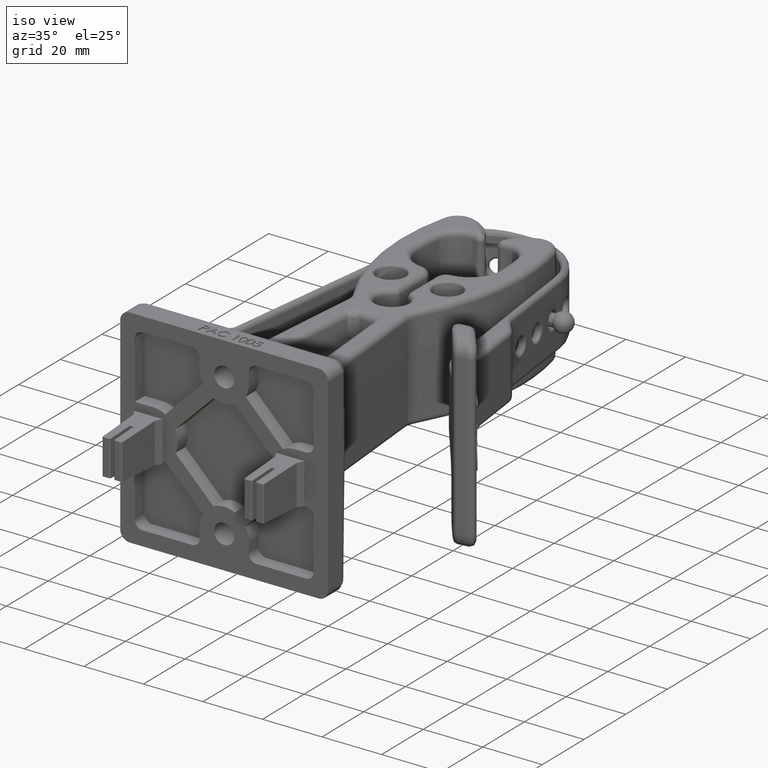
[diagram: clean part render]
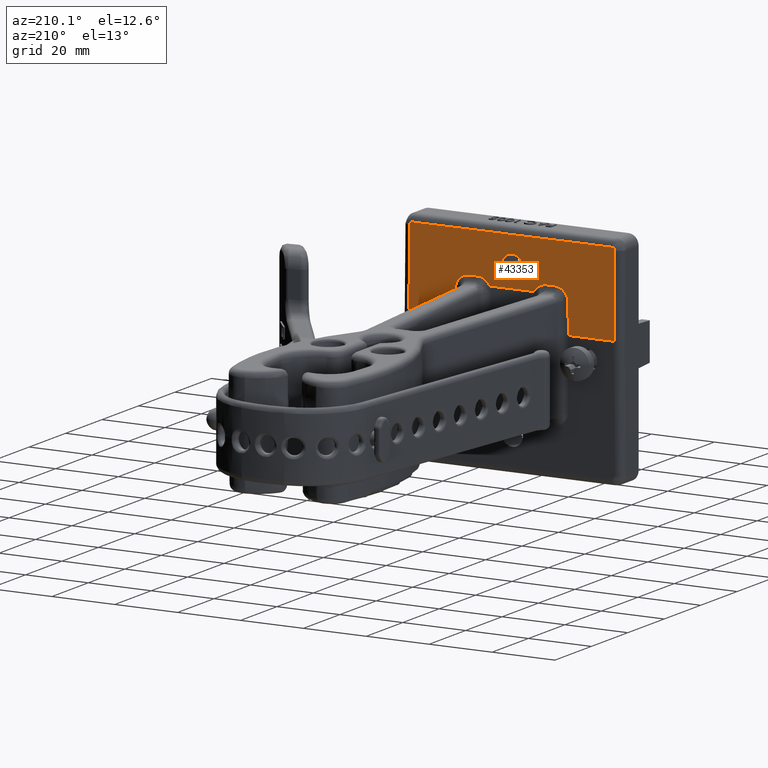
[diagram: tour spotlight — one face highlighted and labeled with its STEP entity id]
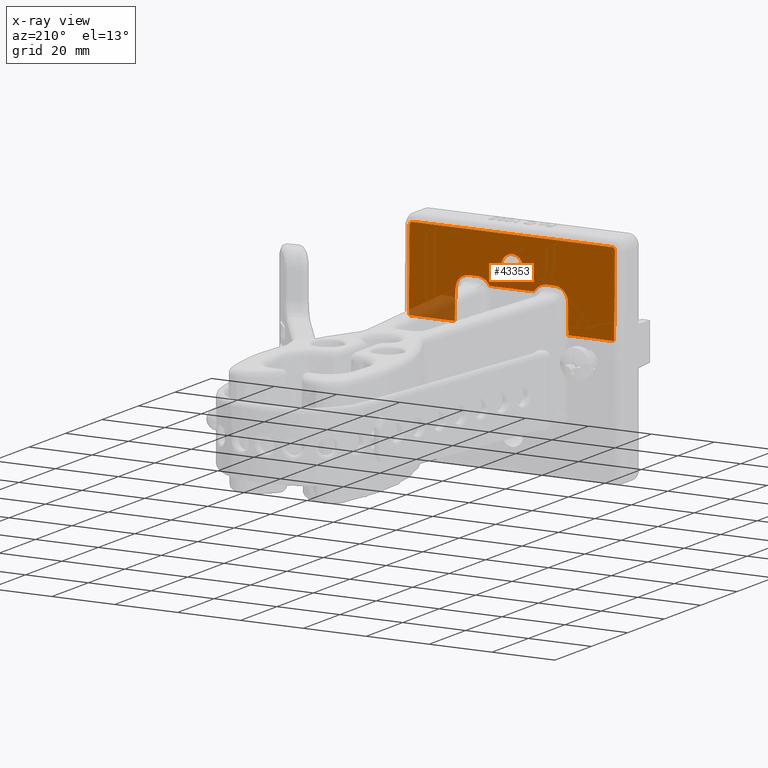
[diagram: x-ray of the same camera — body ghosted, this tour face saturated]
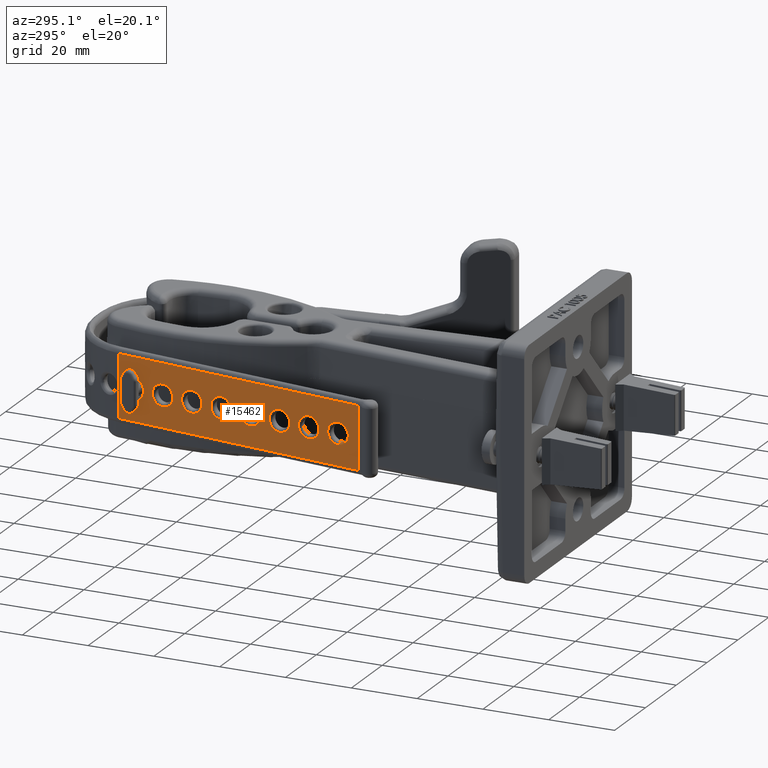
[diagram: tour spotlight — one face highlighted and labeled with its STEP entity id]
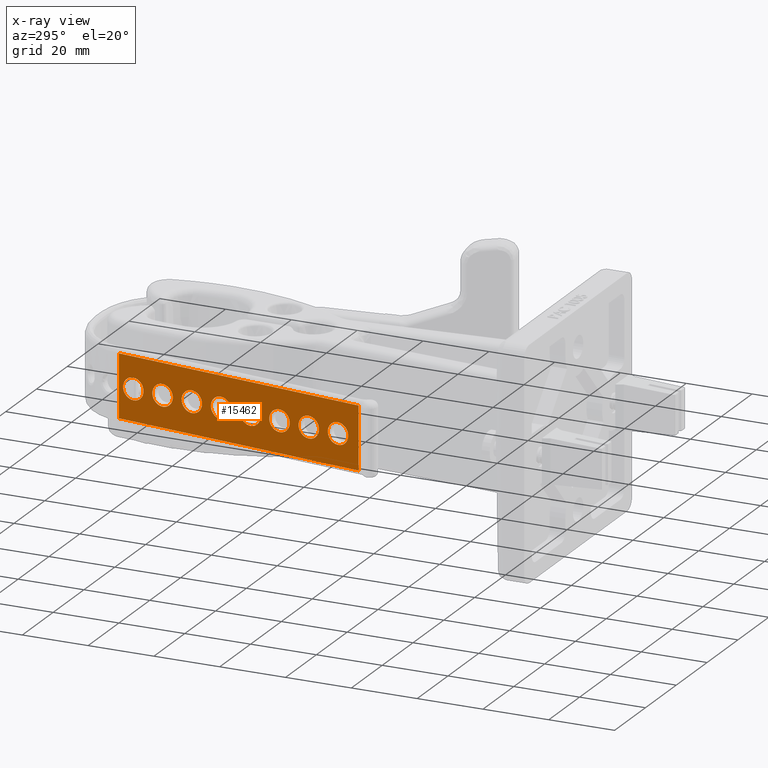
[diagram: x-ray of the same camera — body ghosted, this tour face saturated]
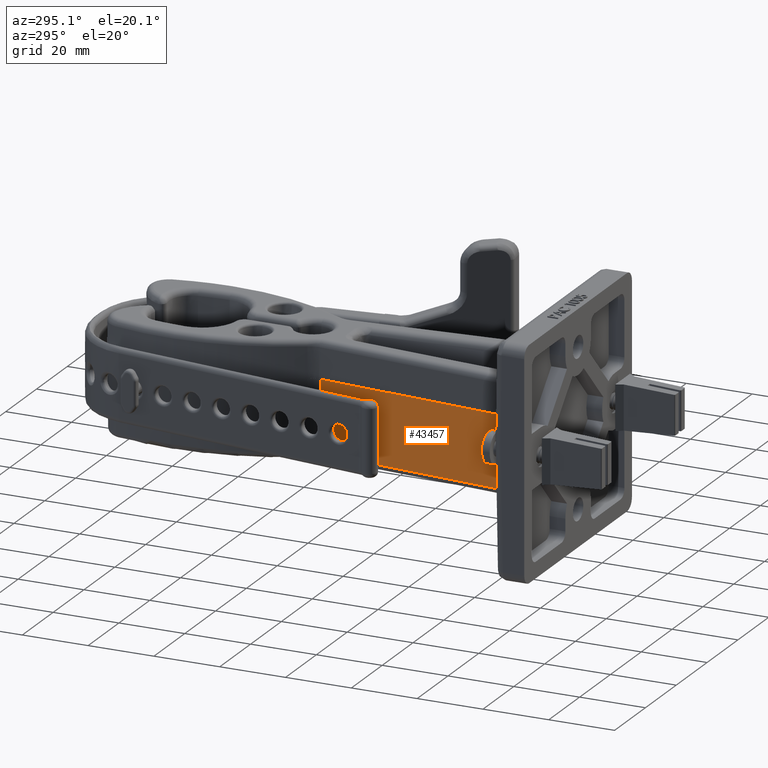
[diagram: tour spotlight — one face highlighted and labeled with its STEP entity id]
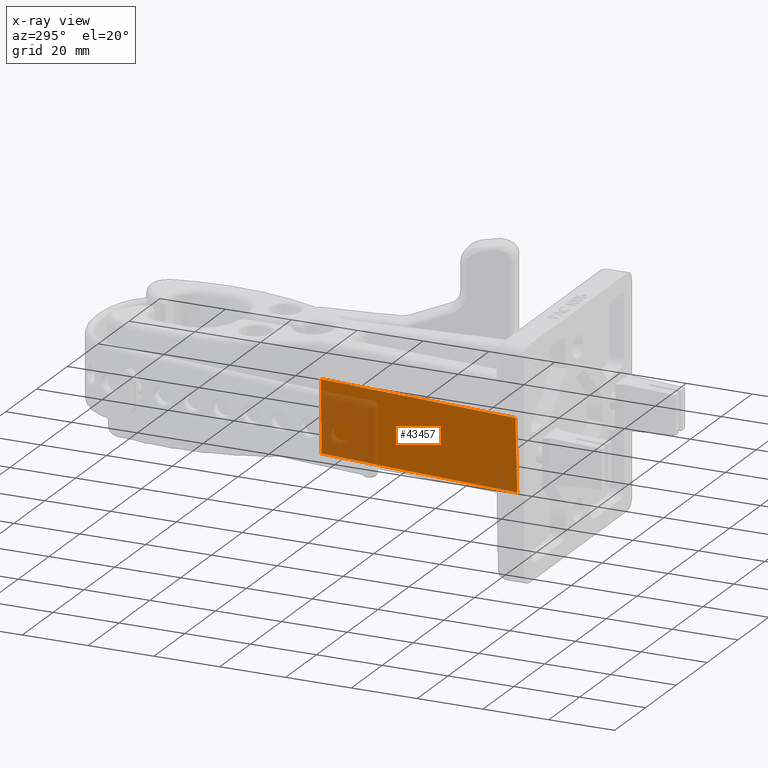
[diagram: x-ray of the same camera — body ghosted, this tour face saturated]
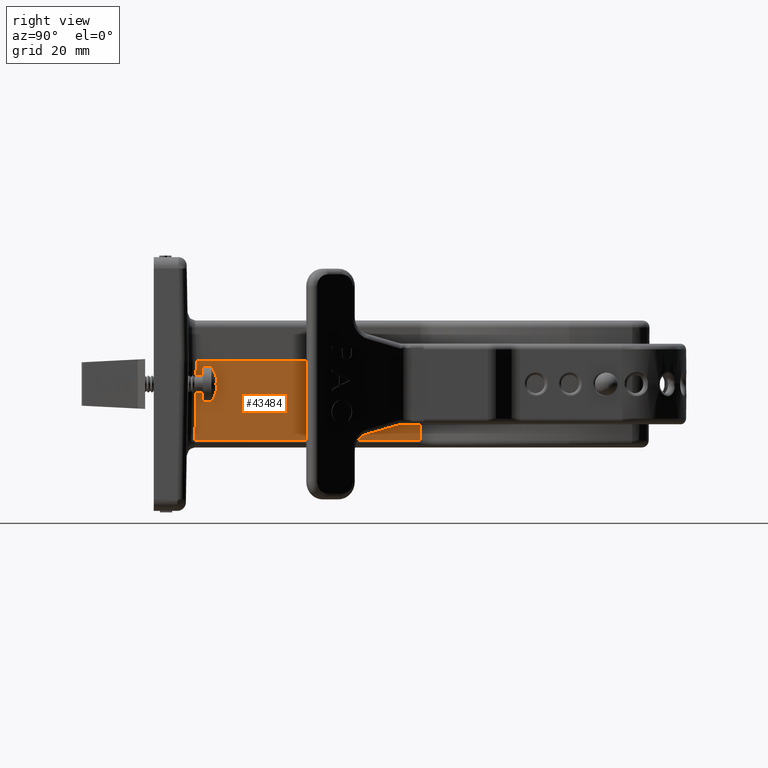
[diagram: tour spotlight — one face highlighted and labeled with its STEP entity id]
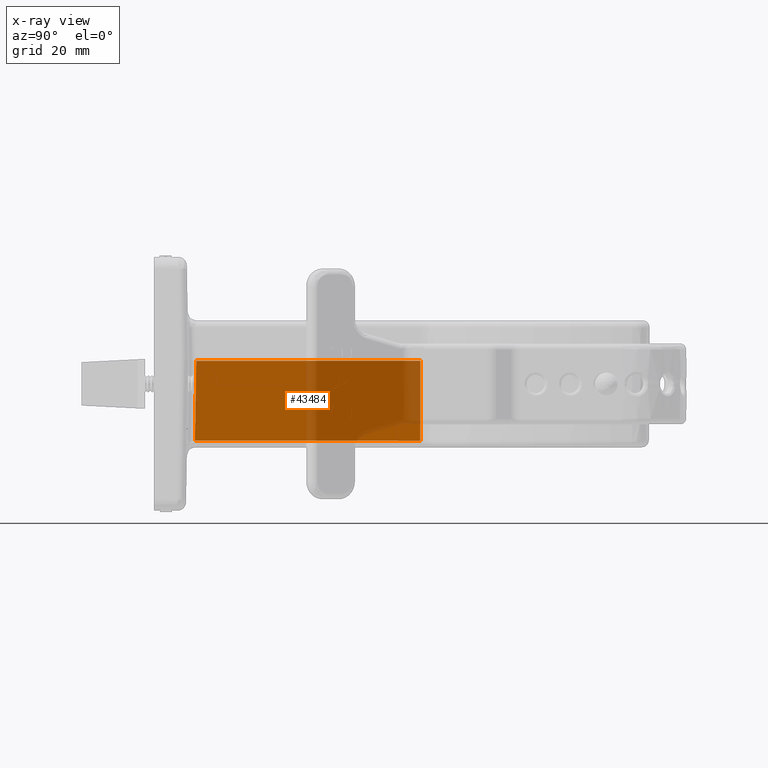
[diagram: x-ray of the same camera — body ghosted, this tour face saturated]
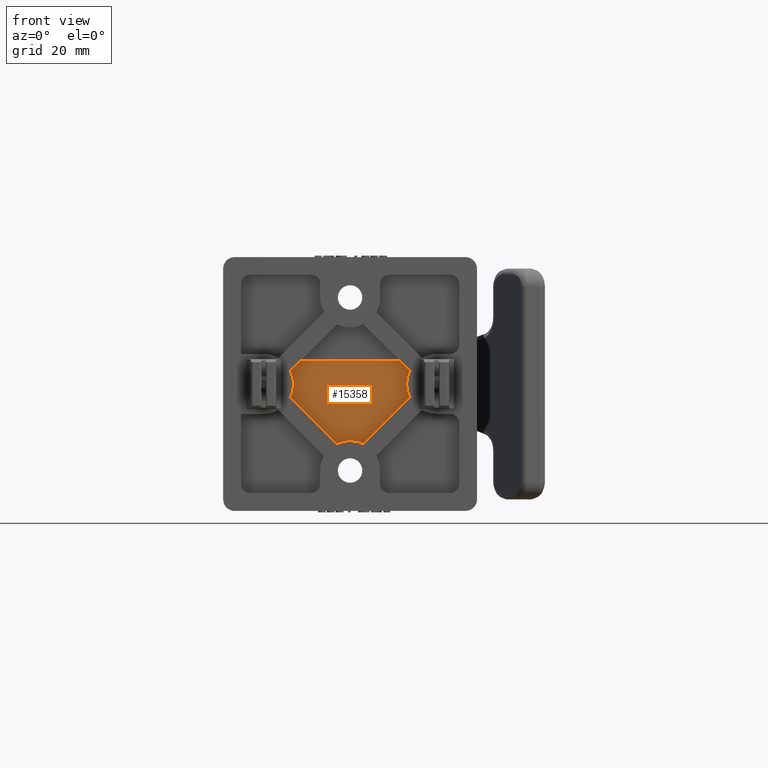
[diagram: tour spotlight — one face highlighted and labeled with its STEP entity id]
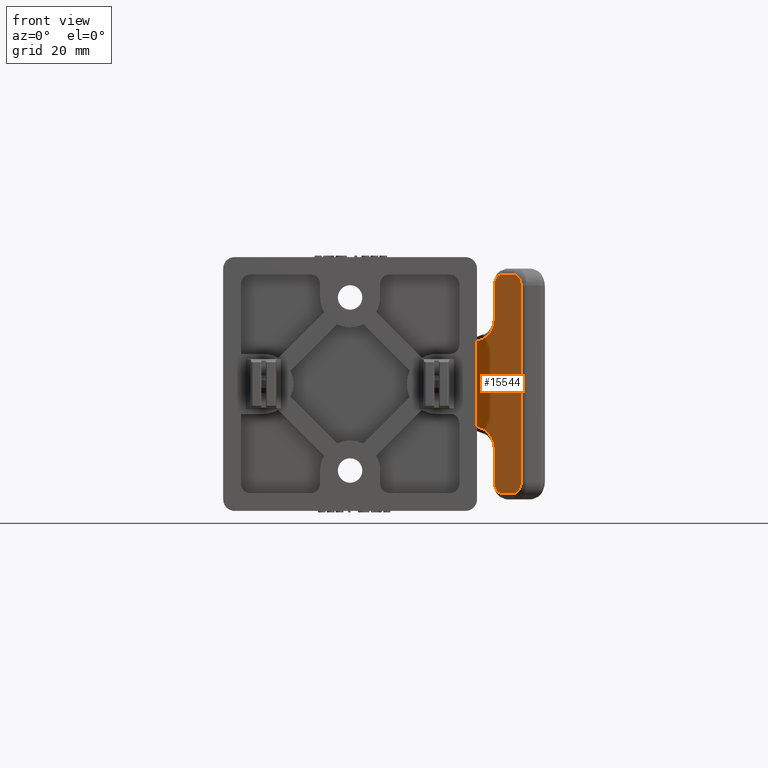
[diagram: tour spotlight — one face highlighted and labeled with its STEP entity id]
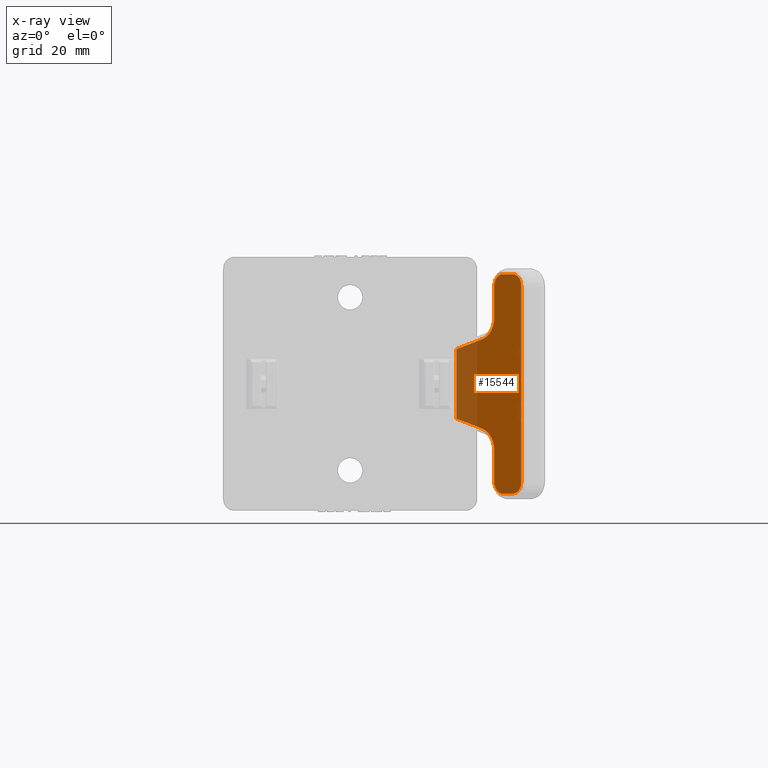
[diagram: x-ray of the same camera — body ghosted, this tour face saturated]
A machine part: a face-by-face anatomy tour. The part has 1312 B-rep faces; the first image is the clean iso view, then the 6 largest visible faces are spotlighted one at a time (largest first), each with its STEP entity span.

Face 1 — auxiliary view, entity #43353. An x-ray twin of the same camera follows (body ghosted, this face saturated) — the face is partly hidden behind the body. In plain terms, the highlighted planar face has unit normal (-0, 0.9998, 0.0175).
Definition (entity closure, byte-faithful):
#6690 = CARTESIAN_POINT ( 'NONE',  ( -0.5359583840820919500, -0.1342444439099109700, 0.7796138368965046500 ) ) ;
#6701 = CARTESIAN_POINT ( 'NONE',  ( -0.6202797598859097800, -0.1342444439099112200, 0.7796138368965045400 ) ) ;
#6702 = CARTESIAN_POINT ( 'NONE',  ( -0.6854147706716697800, -0.1333150172158368800, 0.7263670172543803500 ) ) ;
#6703 = CARTESIAN_POINT ( 'NONE',  ( -0.7018475867279743200, -0.1318773321011034400, 0.6440020921941885800 ) ) ;
#6753 = CARTESIAN_POINT ( 'NONE',  ( 0.7050739780110282200, -0.1313503085030425200, 0.6138089304827963900 ) ) ;
#6757 = CARTESIAN_POINT ( 'NONE',  ( 0.7049116520083985600, -0.1315274562496569800, 0.6239577180893137700 ) ) ;
#6758 = CARTESIAN_POINT ( 'NONE',  ( 0.7038332719232532900, -0.1317036071571848800, 0.6340493968228109200 ) ) ;
#6759 = CARTESIAN_POINT ( 'NONE',  ( 0.7018475867279743200, -0.1318773321011030300, 0.6440020921941885800 ) ) ;
#6820 = CARTESIAN_POINT ( 'NONE',  ( 2.767050240226089500E-017, -0.1346788335026966600, 0.8045000000000001000 ) ) ;
#6870 = CARTESIAN_POINT ( 'NONE',  ( -0.2659999999999998500, -0.1346788335026966600, 0.8045000000000001000 ) ) ;
#6871 = CARTESIAN_POINT ( 'NONE',  ( -0.2659999999999999000, -0.1393218807736025800, 1.070500000000000000 ) ) ;
#6872 = CARTESIAN_POINT ( 'NONE',  ( 1.138269997360110100E-017, -0.1393218807736025500, 1.070500000000000000 ) ) ;
#6963 = CARTESIAN_POINT ( 'NONE',  ( 1.138269997360110100E-017, -0.1249999999999999900, 0.2500000000000000000 ) ) ;
#6964 = DIRECTION ( 'NONE',  ( -1.000000000000000000, -9.106159978880883600E-017, 0.0000000000000000000 ) ) ;
#7056 = CARTESIAN_POINT ( 'NONE',  ( 1.138269997360110100E-017, -0.1249999999999999900, 0.2500000000000000000 ) ) ;
#7057 = DIRECTION ( 'NONE',  ( -1.000000000000000000, -9.106159978880883600E-017, 0.0000000000000000000 ) ) ;
#7178 = CARTESIAN_POINT ( 'NONE',  ( 1.138269997360110100E-017, -0.1393218807736025500, 1.070500000000000000 ) ) ;
#7181 = CARTESIAN_POINT ( 'NONE',  ( 1.249999999999999800, -0.1430934091605815800, 1.286570716579355600 ) ) ;
#7184 = CARTESIAN_POINT ( 'NONE',  ( 1.270502525316941700, -0.1430934091605815800, 1.286570716579355600 ) ) ;
#7185 = CARTESIAN_POINT ( 'NONE',  ( 1.284999999999999900, -0.1428403547986936400, 1.272073241896297200 ) ) ;
#7186 = CARTESIAN_POINT ( 'NONE',  ( 1.284999999999999900, -0.1424824818880939500, 1.251570716579355500 ) ) ;
#7193 = CARTESIAN_POINT ( 'NONE',  ( -0.7108710021523455500, -0.1250239667767195100, 0.2513730557186716300 ) ) ;
#7194 = DIRECTION ( 'NONE',  ( -0.01599013947212555800, 0.01745017513921393000, -0.9997198641755962200 ) ) ;
#7195 = CARTESIAN_POINT ( 'NONE',  ( 1.249999999999999800, -0.1430934091605815800, 1.286570716579355600 ) ) ;
#7196 = DIRECTION ( 'NONE',  ( 1.000000000000000000, 9.106159978880883600E-017, -2.152348045324487000E-034 ) ) ;
#7197 = CARTESIAN_POINT ( 'NONE',  ( -1.284999999999999500, -0.1250000000000001100, 0.2500000000000000000 ) ) ;
#7198 = DIRECTION ( 'NONE',  ( -0.0000000000000000000, -0.01745240643728355000, 0.9998476951563912700 ) ) ;
#7199 = CARTESIAN_POINT ( 'NONE',  ( 0.7018475867279743200, -0.1318773321011030300, 0.6440020921941885800 ) ) ;
#7200 = CARTESIAN_POINT ( 'NONE',  ( -0.7018475867279743200, -0.1318773321011034400, 0.6440020921941885800 ) ) ;
#7201 = CARTESIAN_POINT ( 'NONE',  ( 0.2659999999999999600, -0.1393218807736025800, 1.070500000000000000 ) ) ;
#7202 = CARTESIAN_POINT ( 'NONE',  ( 0.2660000000000000700, -0.1346788335026966600, 0.8045000000000001000 ) ) ;
#7203 = CARTESIAN_POINT ( 'NONE',  ( 2.767050240226089500E-017, -0.1346788335026966600, 0.8045000000000001000 ) ) ;
#7204 = CARTESIAN_POINT ( 'NONE',  ( -1.284999999999999500, -0.1424824818880942000, 1.251570716579355500 ) ) ;
#7205 = CARTESIAN_POINT ( 'NONE',  ( -0.7038332719232532900, -0.1317036071571852700, 0.6340493968228109200 ) ) ;
#7206 = CARTESIAN_POINT ( 'NONE',  ( -0.7049116520083986700, -0.1315274562496573900, 0.6239577180893137700 ) ) ;
#7207 = CARTESIAN_POINT ( 'NONE',  ( -0.7050739780110282200, -0.1313503085030426600, 0.6138089304827962800 ) ) ;
#7208 = CARTESIAN_POINT ( 'NONE',  ( -1.284999999999999900, -0.1428403547986938400, 1.272073241896297200 ) ) ;
#7209 = CARTESIAN_POINT ( 'NONE',  ( -1.270502525316941100, -0.1430934091605817700, 1.286570716579355600 ) ) ;
#7210 = CARTESIAN_POINT ( 'NONE',  ( -1.249999999999999800, -0.1430934091605818000, 1.286570716579355600 ) ) ;
#7211 = CARTESIAN_POINT ( 'NONE',  ( 1.284999999999999500, -0.1249999999999998600, 0.2500000000000000000 ) ) ;
#7212 = DIRECTION ( 'NONE',  ( 0.0000000000000000000, 0.01745240643728355000, -0.9998476951563912700 ) ) ;
#7213 = CARTESIAN_POINT ( 'NONE',  ( 0.6854147706716700000, -0.1333150172158365000, 0.7263670172543803500 ) ) ;
#7214 = CARTESIAN_POINT ( 'NONE',  ( 0.6202797598859097800, -0.1342444439099108600, 0.7796138368965045400 ) ) ;
#7215 = CARTESIAN_POINT ( 'NONE',  ( 0.5359583840820921800, -0.1342444439099108900, 0.7796138368965046500 ) ) ;
#7216 = CARTESIAN_POINT ( 'NONE',  ( 0.7107111993021343300, -0.1251983609856500400, 0.2613640932569354900 ) ) ;
#7217 = DIRECTION ( 'NONE',  ( -0.01599013947212555400, -0.01745017513921393000, 0.9997198641755962200 ) ) ;
#7218 = CARTESIAN_POINT ( 'NONE',  ( 0.4325737630414321900, -0.1342444439099108900, 0.7796138368965046500 ) ) ;
#7219 = CARTESIAN_POINT ( 'NONE',  ( 0.3670473943036901600, -0.1326365909060951700, 0.6875000000000000000 ) ) ;
#7220 = DIRECTION ( 'NONE',  ( 1.000000000000000000, 1.860691586468509500E-016, -0.0000000000000000000 ) ) ;
#7221 = CARTESIAN_POINT ( 'NONE',  ( -0.2784699072301321500, -0.1326365909060952800, 0.6875000000000000000 ) ) ;
#7222 = CARTESIAN_POINT ( 'NONE',  ( 0.3664135244030442600, -0.1342444439099109200, 0.7796138368965047600 ) ) ;
#7223 = CARTESIAN_POINT ( 'NONE',  ( 0.3096440395224630000, -0.1336521356492916500, 0.7456805193720447100 ) ) ;
#7224 = CARTESIAN_POINT ( 'NONE',  ( 0.2784699072301322600, -0.1326365909060951700, 0.6875000000000000000 ) ) ;
#7225 = CARTESIAN_POINT ( 'NONE',  ( 1.222451382519550400E-017, -0.1342444439099109200, 0.7796138368965046500 ) ) ;
#7226 = DIRECTION ( 'NONE',  ( -1.000000000000000000, -9.106159978880883600E-017, 3.853101317891288200E-034 ) ) ;
#7227 = CARTESIAN_POINT ( 'NONE',  ( -0.3096440395224628300, -0.1336521356492916500, 0.7456805193720447100 ) ) ;
#7228 = CARTESIAN_POINT ( 'NONE',  ( -0.3664135244030442600, -0.1342444439099109200, 0.7796138368965047600 ) ) ;
#7229 = CARTESIAN_POINT ( 'NONE',  ( -0.4325737630414320800, -0.1342444439099109700, 0.7796138368965046500 ) ) ;
#7230 = CARTESIAN_POINT ( 'NONE',  ( 1.222451382519550400E-017, -0.1342444439099109200, 0.7796138368965046500 ) ) ;
#7231 = DIRECTION ( 'NONE',  ( -1.000000000000000000, -9.106159978880883600E-017, 3.853101317891288200E-034 ) ) ;
#7448 = LINE ( 'NONE', #6963, #7449 ) ;
#7449 = VECTOR ( 'NONE', #6964, 39.37007874015748100 ) ;
#7481 = LINE ( 'NONE', #7056, #7486 ) ;
#7486 = VECTOR ( 'NONE', #7057, 39.37007874015748100 ) ;
#7535 = LINE ( 'NONE', #7211, #7551 ) ;
#7543 = LINE ( 'NONE', #7193, #7544 ) ;
#7544 = VECTOR ( 'NONE', #7194, 39.37007874015748900 ) ;
#7545 = LINE ( 'NONE', #7195, #7546 ) ;
#7546 = VECTOR ( 'NONE', #7196, 39.37007874015748100 ) ;
#7547 = LINE ( 'NONE', #7197, #7548 ) ;
#7548 = VECTOR ( 'NONE', #7198, 39.37007874015748100 ) ;
#7549 = LINE ( 'NONE', #7216, #7553 ) ;
#7550 = LINE ( 'NONE', #7225, #7557 ) ;
#7551 = VECTOR ( 'NONE', #7212, 39.37007874015748100 ) ;
#7552 = LINE ( 'NONE', #7230, #7559 ) ;
#7553 = VECTOR ( 'NONE', #7217, 39.37007874015748900 ) ;
#7554 = LINE ( 'NONE', #7219, #7555 ) ;
#7555 = VECTOR ( 'NONE', #7220, 39.37007874015748100 ) ;
#7557 = VECTOR ( 'NONE', #7226, 39.37007874015748100 ) ;
#7559 = VECTOR ( 'NONE', #7231, 39.37007874015748100 ) ;
#10820 = CARTESIAN_POINT ( 'NONE',  ( -0.7018475867279743200, -0.1318773321011034400, 0.6440020921941885800 ) ) ;
#10821 = CARTESIAN_POINT ( 'NONE',  ( -0.5359583840820919500, -0.1342444439099109700, 0.7796138368965046500 ) ) ;
#10831 = CARTESIAN_POINT ( 'NONE',  ( 0.7018475867279743200, -0.1318773321011030300, 0.6440020921941885800 ) ) ;
#10832 = CARTESIAN_POINT ( 'NONE',  ( 0.7050739780110282200, -0.1313503085030425200, 0.6138089304827963900 ) ) ;
#10861 = CARTESIAN_POINT ( 'NONE',  ( 2.767050240226089500E-017, -0.1346788335026966600, 0.8045000000000001000 ) ) ;
#10862 = CARTESIAN_POINT ( 'NONE',  ( 1.138269997360110100E-017, -0.1393218807736025500, 1.070500000000000000 ) ) ;
#10885 = CARTESIAN_POINT ( 'NONE',  ( -1.284999999999999500, -0.1250000000000001100, 0.2500000000000000000 ) ) ;
#10886 = CARTESIAN_POINT ( 'NONE',  ( -0.7108929636569943900, -0.1250000000000000600, 0.2500000000000000000 ) ) ;
#10910 = CARTESIAN_POINT ( 'NONE',  ( 0.7108929636569942800, -0.1249999999999999200, 0.2500000000000000000 ) ) ;
#10911 = CARTESIAN_POINT ( 'NONE',  ( 1.284999999999999500, -0.1249999999999998600, 0.2500000000000000000 ) ) ;
#10941 = CARTESIAN_POINT ( 'NONE',  ( -0.7050739780110282200, -0.1313503085030426600, 0.6138089304827962800 ) ) ;
#10942 = CARTESIAN_POINT ( 'NONE',  ( -1.284999999999999500, -0.1424824818880942000, 1.251570716579355500 ) ) ;
#10943 = CARTESIAN_POINT ( 'NONE',  ( -1.249999999999999800, -0.1430934091605818000, 1.286570716579355600 ) ) ;
#10944 = CARTESIAN_POINT ( 'NONE',  ( 1.249999999999999800, -0.1430934091605815800, 1.286570716579355600 ) ) ;
#10945 = CARTESIAN_POINT ( 'NONE',  ( 1.284999999999999900, -0.1424824818880939500, 1.251570716579355500 ) ) ;
#10946 = CARTESIAN_POINT ( 'NONE',  ( 0.5359583840820921800, -0.1342444439099108900, 0.7796138368965046500 ) ) ;
#10947 = CARTESIAN_POINT ( 'NONE',  ( 0.4325737630414321900, -0.1342444439099108900, 0.7796138368965046500 ) ) ;
#10948 = CARTESIAN_POINT ( 'NONE',  ( 0.2784699072301322600, -0.1326365909060951700, 0.6875000000000000000 ) ) ;
#10949 = CARTESIAN_POINT ( 'NONE',  ( -0.2784699072301321500, -0.1326365909060952800, 0.6875000000000000000 ) ) ;
#10950 = CARTESIAN_POINT ( 'NONE',  ( -0.4325737630414320800, -0.1342444439099109700, 0.7796138368965046500 ) ) ;
#11511 =( BOUNDED_CURVE ( )  B_SPLINE_CURVE ( 3, ( #6690, #6701, #6702, #6703 ),
 .UNSPECIFIED., .F., .F. ) 
 B_SPLINE_CURVE_WITH_KNOTS ( ( 4, 4 ),
 ( 4.910048381758048900, 6.283185307179585300 ),
 .UNSPECIFIED. ) 
 CURVE ( )  GEOMETRIC_REPRESENTATION_ITEM ( )  RATIONAL_B_SPLINE_CURVE ( ( 1.000000000000000000, 0.8489505139385009600, 0.8489505139385009600, 1.000000000000000000 ) ) 
 REPRESENTATION_ITEM ( '' )  );
#11513 =( BOUNDED_CURVE ( )  B_SPLINE_CURVE ( 3, ( #6753, #6757, #6758, #6759 ),
 .UNSPECIFIED., .F., .F. ) 
 B_SPLINE_CURVE_WITH_KNOTS ( ( 4, 4 ),
 ( 6.102979198326171900, 6.283185307179586200 ),
 .UNSPECIFIED. ) 
 CURVE ( )  GEOMETRIC_REPRESENTATION_ITEM ( )  RATIONAL_B_SPLINE_CURVE ( ( 1.000000000000000000, 0.9972956435606891200, 0.9972956435606891200, 1.000000000000000000 ) ) 
 REPRESENTATION_ITEM ( '' )  );
#11515 =( BOUNDED_CURVE ( )  B_SPLINE_CURVE ( 3, ( #6820, #6870, #6871, #6872 ),
 .UNSPECIFIED., .F., .F. ) 
 B_SPLINE_CURVE_WITH_KNOTS ( ( 4, 4 ),
 ( 5.094450878021681600E-015, 3.141592653589798000 ),
 .UNSPECIFIED. ) 
 CURVE ( )  GEOMETRIC_REPRESENTATION_ITEM ( )  RATIONAL_B_SPLINE_CURVE ( ( 1.000000000000000000, 0.3333333333333333700, 0.3333333333333333700, 1.000000000000000000 ) ) 
 REPRESENTATION_ITEM ( '' )  );
#11520 =( BOUNDED_CURVE ( )  B_SPLINE_CURVE ( 3, ( #7181, #7184, #7185, #7186 ),
 .UNSPECIFIED., .F., .F. ) 
 B_SPLINE_CURVE_WITH_KNOTS ( ( 4, 4 ),
 ( 3.141592653589798000, 4.712388980384695000 ),
 .UNSPECIFIED. ) 
 CURVE ( )  GEOMETRIC_REPRESENTATION_ITEM ( )  RATIONAL_B_SPLINE_CURVE ( ( 1.000000000000000000, 0.8047378541243649400, 0.8047378541243649400, 1.000000000000000000 ) ) 
 REPRESENTATION_ITEM ( '' )  );
#11521 =( BOUNDED_CURVE ( )  B_SPLINE_CURVE ( 3, ( #7178, #7201, #7202, #7203 ),
 .UNSPECIFIED., .F., .T. ) 
 B_SPLINE_CURVE_WITH_KNOTS ( ( 4, 4 ),
 ( 3.141592653589798000, 6.283185307179591600 ),
 .UNSPECIFIED. ) 
 CURVE ( )  GEOMETRIC_REPRESENTATION_ITEM ( )  RATIONAL_B_SPLINE_CURVE ( ( 1.000000000000000000, 0.3333333333333332000, 0.3333333333333332000, 1.000000000000000000 ) ) 
 REPRESENTATION_ITEM ( '' )  );
#11522 =( BOUNDED_CURVE ( )  B_SPLINE_CURVE ( 3, ( #7200, #7205, #7206, #7207 ),
 .UNSPECIFIED., .F., .T. ) 
 B_SPLINE_CURVE_WITH_KNOTS ( ( 4, 4 ),
 ( -8.881784197001252300E-016, 0.1802061088534147600 ),
 .UNSPECIFIED. ) 
 CURVE ( )  GEOMETRIC_REPRESENTATION_ITEM ( )  RATIONAL_B_SPLINE_CURVE ( ( 1.000000000000000000, 0.9972956435606891200, 0.9972956435606891200, 1.000000000000000000 ) ) 
 REPRESENTATION_ITEM ( '' )  );
#11523 =( BOUNDED_CURVE ( )  B_SPLINE_CURVE ( 3, ( #7204, #7208, #7209, #7210 ),
 .UNSPECIFIED., .F., .T. ) 
 B_SPLINE_CURVE_WITH_KNOTS ( ( 4, 4 ),
 ( 1.570796326794901900, 3.141592653589798000 ),
 .UNSPECIFIED. ) 
 CURVE ( )  GEOMETRIC_REPRESENTATION_ITEM ( )  RATIONAL_B_SPLINE_CURVE ( ( 1.000000000000000000, 0.8047378541243650500, 0.8047378541243650500, 1.000000000000000000 ) ) 
 REPRESENTATION_ITEM ( '' )  );
#11524 =( BOUNDED_CURVE ( )  B_SPLINE_CURVE ( 3, ( #7199, #7213, #7214, #7215 ),
 .UNSPECIFIED., .F., .T. ) 
 B_SPLINE_CURVE_WITH_KNOTS ( ( 4, 4 ),
 ( 3.794233324533696900E-016, 1.373136925421536000 ),
 .UNSPECIFIED. ) 
 CURVE ( )  GEOMETRIC_REPRESENTATION_ITEM ( )  RATIONAL_B_SPLINE_CURVE ( ( 1.000000000000000000, 0.8489505139385009600, 0.8489505139385009600, 1.000000000000000000 ) ) 
 REPRESENTATION_ITEM ( '' )  );
#11525 =( BOUNDED_CURVE ( )  B_SPLINE_CURVE ( 3, ( #7218, #7222, #7223, #7224 ),
 .UNSPECIFIED., .F., .T. ) 
 B_SPLINE_CURVE_WITH_KNOTS ( ( 4, 4 ),
 ( 1.373136925421538400, 2.454814195170674600 ),
 .UNSPECIFIED. ) 
 CURVE ( )  GEOMETRIC_REPRESENTATION_ITEM ( )  RATIONAL_B_SPLINE_CURVE ( ( 1.000000000000000000, 0.9048514716164195400, 0.9048514716164195400, 1.000000000000000000 ) ) 
 REPRESENTATION_ITEM ( '' )  );
#11526 =( BOUNDED_CURVE ( )  B_SPLINE_CURVE ( 3, ( #7221, #7227, #7228, #7229 ),
 .UNSPECIFIED., .F., .F. ) 
 B_SPLINE_CURVE_WITH_KNOTS ( ( 4, 4 ),
 ( 0.6867784584191181100, 1.768455728168254900 ),
 .UNSPECIFIED. ) 
 CURVE ( )  GEOMETRIC_REPRESENTATION_ITEM ( )  RATIONAL_B_SPLINE_CURVE ( ( 1.000000000000000000, 0.9048514716164193200, 0.9048514716164193200, 1.000000000000000000 ) ) 
 REPRESENTATION_ITEM ( '' )  );
#11775 = EDGE_LOOP ( 'NONE', ( #48304, #48305 ) ) ;
#11781 = EDGE_LOOP ( 'NONE', ( #48306, #48307, #48308, #48309, #48310, #48311, #48312, #48313, #48314, #48315, #48316, #48317, #48318, #48319, #48320, #48321, #48322, #48323 ) ) ;
#22254 = EDGE_CURVE ( 'NONE', #23400, #23399, #11511, .T. ) ;
#22273 = EDGE_CURVE ( 'NONE', #23411, #23410, #11513, .T. ) ;
#22299 = EDGE_CURVE ( 'NONE', #23440, #23441, #11515, .T. ) ;
#22336 = EDGE_CURVE ( 'NONE', #23465, #23464, #7448, .T. ) ;
#22369 = EDGE_CURVE ( 'NONE', #23490, #23489, #7481, .T. ) ;
#22406 = EDGE_CURVE ( 'NONE', #23523, #23524, #11520, .T. ) ;
#22410 = EDGE_CURVE ( 'NONE', #23520, #23465, #7543, .T. ) ;
#22411 = EDGE_CURVE ( 'NONE', #23522, #23523, #7545, .T. ) ;
#22412 = EDGE_CURVE ( 'NONE', #23464, #23521, #7547, .T. ) ;
#22413 = EDGE_CURVE ( 'NONE', #23441, #23440, #11521, .T. ) ;
#22414 = EDGE_CURVE ( 'NONE', #23399, #23520, #11522, .T. ) ;
#22415 = EDGE_CURVE ( 'NONE', #23521, #23522, #11523, .T. ) ;
#22416 = EDGE_CURVE ( 'NONE', #23524, #23490, #7535, .T. ) ;
#22417 = EDGE_CURVE ( 'NONE', #23410, #23525, #11524, .T. ) ;
#22418 = EDGE_CURVE ( 'NONE', #23489, #23411, #7549, .T. ) ;
#22419 = EDGE_CURVE ( 'NONE', #23528, #23527, #7554, .T. ) ;
#22420 = EDGE_CURVE ( 'NONE', #23526, #23527, #11525, .T. ) ;
#22421 = EDGE_CURVE ( 'NONE', #23525, #23526, #7550, .T. ) ;
#22422 = EDGE_CURVE ( 'NONE', #23528, #23529, #11526, .T. ) ;
#22423 = EDGE_CURVE ( 'NONE', #23529, #23400, #7552, .T. ) ;
#23399 = VERTEX_POINT ( 'NONE', #10820 ) ;
#23400 = VERTEX_POINT ( 'NONE', #10821 ) ;
#23410 = VERTEX_POINT ( 'NONE', #10831 ) ;
#23411 = VERTEX_POINT ( 'NONE', #10832 ) ;
#23440 = VERTEX_POINT ( 'NONE', #10861 ) ;
#23441 = VERTEX_POINT ( 'NONE', #10862 ) ;
#23464 = VERTEX_POINT ( 'NONE', #10885 ) ;
#23465 = VERTEX_POINT ( 'NONE', #10886 ) ;
#23489 = VERTEX_POINT ( 'NONE', #10910 ) ;
#23490 = VERTEX_POINT ( 'NONE', #10911 ) ;
#23520 = VERTEX_POINT ( 'NONE', #10941 ) ;
#23521 = VERTEX_POINT ( 'NONE', #10942 ) ;
#23522 = VERTEX_POINT ( 'NONE', #10943 ) ;
#23523 = VERTEX_POINT ( 'NONE', #10944 ) ;
#23524 = VERTEX_POINT ( 'NONE', #10945 ) ;
#23525 = VERTEX_POINT ( 'NONE', #10946 ) ;
#23526 = VERTEX_POINT ( 'NONE', #10947 ) ;
#23527 = VERTEX_POINT ( 'NONE', #10948 ) ;
#23528 = VERTEX_POINT ( 'NONE', #10949 ) ;
#23529 = VERTEX_POINT ( 'NONE', #10950 ) ;
#24543 = AXIS2_PLACEMENT_3D ( 'NONE', #27335, #27340, #27341 ) ;
#27332 = PLANE ( 'NONE',  #24543 ) ;
#27335 = CARTESIAN_POINT ( 'NONE',  ( 1.138269997360110100E-017, -0.1249999999999999900, 0.2500000000000000000 ) ) ;
#27340 = DIRECTION ( 'NONE',  ( -9.104773066609423900E-017, 0.9998476951563912700, 0.01745240643728355000 ) ) ;
#27341 = DIRECTION ( 'NONE',  ( 0.0000000000000000000, -0.01745240643728355000, 0.9998476951563912700 ) ) ;
#28734 = FACE_OUTER_BOUND ( 'NONE', #11781, .T. ) ;
#28735 = FACE_BOUND ( 'NONE', #11775, .T. ) ;
#43353 = ADVANCED_FACE ( 'NONE', ( #28735, #28734 ), #27332, .T. ) ;
#48304 = ORIENTED_EDGE ( 'NONE', *, *, #22413, .F. ) ;
#48305 = ORIENTED_EDGE ( 'NONE', *, *, #22299, .F. ) ;
#48306 = ORIENTED_EDGE ( 'NONE', *, *, #22254, .T. ) ;
#48307 = ORIENTED_EDGE ( 'NONE', *, *, #22414, .T. ) ;
#48308 = ORIENTED_EDGE ( 'NONE', *, *, #22410, .T. ) ;
#48309 = ORIENTED_EDGE ( 'NONE', *, *, #22336, .T. ) ;
#48310 = ORIENTED_EDGE ( 'NONE', *, *, #22412, .T. ) ;
#48311 = ORIENTED_EDGE ( 'NONE', *, *, #22415, .T. ) ;
#48312 = ORIENTED_EDGE ( 'NONE', *, *, #22411, .T. ) ;
#48313 = ORIENTED_EDGE ( 'NONE', *, *, #22406, .T. ) ;
#48314 = ORIENTED_EDGE ( 'NONE', *, *, #22416, .T. ) ;
#48315 = ORIENTED_EDGE ( 'NONE', *, *, #22369, .T. ) ;
#48316 = ORIENTED_EDGE ( 'NONE', *, *, #22418, .T. ) ;
#48317 = ORIENTED_EDGE ( 'NONE', *, *, #22273, .T. ) ;
#48318 = ORIENTED_EDGE ( 'NONE', *, *, #22417, .T. ) ;
#48319 = ORIENTED_EDGE ( 'NONE', *, *, #22421, .T. ) ;
#48320 = ORIENTED_EDGE ( 'NONE', *, *, #22420, .T. ) ;
#48321 = ORIENTED_EDGE ( 'NONE', *, *, #22419, .F. ) ;
#48322 = ORIENTED_EDGE ( 'NONE', *, *, #22422, .T. ) ;
#48323 = ORIENTED_EDGE ( 'NONE', *, *, #22423, .T. ) ;

Face 2 — auxiliary view, entity #15462. An x-ray twin of the same camera follows (body ghosted, this face saturated) — the face is partly hidden behind the body. In plain terms, the highlighted planar face has unit normal (-0.992, 0.1262, -0).
Definition (entity closure, byte-faithful):
#1323 = ORIENTED_EDGE ( 'NONE', *, *, #49547, .F. ) ;
#1324 = ORIENTED_EDGE ( 'NONE', *, *, #49546, .T. ) ;
#1325 = ORIENTED_EDGE ( 'NONE', *, *, #49539, .T. ) ;
#1326 = ORIENTED_EDGE ( 'NONE', *, *, #49548, .T. ) ;
#1327 = ORIENTED_EDGE ( 'NONE', *, *, #49542, .T. ) ;
#1328 = ORIENTED_EDGE ( 'NONE', *, *, #49517, .T. ) ;
#1329 = ORIENTED_EDGE ( 'NONE', *, *, #49549, .T. ) ;
#1330 = ORIENTED_EDGE ( 'NONE', *, *, #49533, .T. ) ;
#1331 = ORIENTED_EDGE ( 'NONE', *, *, #49545, .T. ) ;
#1332 = ORIENTED_EDGE ( 'NONE', *, *, #49513, .T. ) ;
#1333 = ORIENTED_EDGE ( 'NONE', *, *, #49550, .T. ) ;
#1334 = ORIENTED_EDGE ( 'NONE', *, *, #49501, .T. ) ;
#1335 = ORIENTED_EDGE ( 'NONE', *, *, #49551, .T. ) ;
#1336 = ORIENTED_EDGE ( 'NONE', *, *, #49489, .T. ) ;
#1337 = ORIENTED_EDGE ( 'NONE', *, *, #49552, .T. ) ;
#1338 = ORIENTED_EDGE ( 'NONE', *, *, #49477, .T. ) ;
#1339 = ORIENTED_EDGE ( 'NONE', *, *, #49553, .T. ) ;
#1340 = ORIENTED_EDGE ( 'NONE', *, *, #49465, .T. ) ;
#1341 = ORIENTED_EDGE ( 'NONE', *, *, #49554, .T. ) ;
#1342 = ORIENTED_EDGE ( 'NONE', *, *, #49453, .T. ) ;
#2133 = CARTESIAN_POINT ( 'NONE',  ( -0.9755932450887288000, 4.014824034755339000, -0.1312499999999997800 ) ) ;
#2146 = CARTESIAN_POINT ( 'NONE',  ( -0.9755932450887288000, 4.014824034755339000, 0.1312499999999998700 ) ) ;
#2152 = CARTESIAN_POINT ( 'NONE',  ( -1.022917858514663700, 3.642822178625444900, -0.1312499999999997600 ) ) ;
#2153 = CARTESIAN_POINT ( 'NONE',  ( -1.022917858514663700, 3.642822178625444900, 0.1312499999999998900 ) ) ;
#2160 = CARTESIAN_POINT ( 'NONE',  ( -1.070242471940598700, 3.270820322495551700, -0.1312499999999997300 ) ) ;
#2161 = CARTESIAN_POINT ( 'NONE',  ( -1.070242471940598700, 3.270820322495551700, 0.1312499999999999200 ) ) ;
#2168 = CARTESIAN_POINT ( 'NONE',  ( -1.117567085366533400, 2.898818466365658900, -0.1312499999999997000 ) ) ;
#2169 = CARTESIAN_POINT ( 'NONE',  ( -1.117567085366533400, 2.898818466365658900, 0.1312499999999999800 ) ) ;
#2176 = CARTESIAN_POINT ( 'NONE',  ( -1.164891698792468200, 2.526816610235765600, -0.1312499999999996700 ) ) ;
#2177 = CARTESIAN_POINT ( 'NONE',  ( -1.164891698792468200, 2.526816610235765600, 0.1312500000000000100 ) ) ;
#2178 = CARTESIAN_POINT ( 'NONE',  ( -1.212216312218403100, 2.154814754105872000, -0.1312499999999996200 ) ) ;
#2179 = CARTESIAN_POINT ( 'NONE',  ( -1.212216312218403100, 2.154814754105872000, 0.1312500000000000300 ) ) ;
#2190 = CARTESIAN_POINT ( 'NONE',  ( -1.259540925644338400, 1.782812897975978300, -0.1312499999999995900 ) ) ;
#2191 = CARTESIAN_POINT ( 'NONE',  ( -1.259540925644338400, 1.782812897975978300, 0.1312500000000000600 ) ) ;
#2198 = CARTESIAN_POINT ( 'NONE',  ( -0.9046063249498262900, 4.572826818950178800, -0.3749999999999998900 ) ) ;
#2199 = CARTESIAN_POINT ( 'NONE',  ( -0.9046063249498265100, 4.572826818950178800, 0.3749999999999999400 ) ) ;
#2200 = CARTESIAN_POINT ( 'NONE',  ( -1.292783649916532600, 1.521503734797615700, -0.3749999999999996100 ) ) ;
#2201 = CARTESIAN_POINT ( 'NONE',  ( -1.292783649916532600, 1.521503734797615700, 0.3750000000000002200 ) ) ;
#11152 = CARTESIAN_POINT ( 'NONE',  ( -0.9282686316627938300, 4.386825890885232200, -0.1312499999999998100 ) ) ;
#11153 = CARTESIAN_POINT ( 'NONE',  ( -0.9282686316627938300, 4.386825890885232200, 0.1312499999999998400 ) ) ;
#15462 = ADVANCED_FACE ( 'NONE', ( #21768, #21774, #21776, #21778, #21770, #21772, #21775, #21777, #21779 ), #18958, .T. ) ;
#16050 = VERTEX_POINT ( 'NONE', #2133 ) ;
#16051 = VERTEX_POINT ( 'NONE', #2146 ) ;
#16058 = VERTEX_POINT ( 'NONE', #2152 ) ;
#16059 = VERTEX_POINT ( 'NONE', #2153 ) ;
#16070 = VERTEX_POINT ( 'NONE', #2160 ) ;
#16072 = VERTEX_POINT ( 'NONE', #2161 ) ;
#16085 = VERTEX_POINT ( 'NONE', #2168 ) ;
#16086 = VERTEX_POINT ( 'NONE', #2169 ) ;
#16099 = VERTEX_POINT ( 'NONE', #2176 ) ;
#16101 = VERTEX_POINT ( 'NONE', #2177 ) ;
#16103 = VERTEX_POINT ( 'NONE', #2178 ) ;
#16104 = VERTEX_POINT ( 'NONE', #2179 ) ;
#16126 = VERTEX_POINT ( 'NONE', #2190 ) ;
#16128 = VERTEX_POINT ( 'NONE', #2191 ) ;
#16142 = VERTEX_POINT ( 'NONE', #2198 ) ;
#16144 = VERTEX_POINT ( 'NONE', #2199 ) ;
#16146 = VERTEX_POINT ( 'NONE', #2200 ) ;
#16148 = VERTEX_POINT ( 'NONE', #2201 ) ;
#18958 = PLANE ( 'NONE',  #23762 ) ;
#18960 = CARTESIAN_POINT ( 'NONE',  ( -0.2972737859836616600, 9.346850639283808000, 0.4374999999999995600 ) ) ;
#18963 = DIRECTION ( 'NONE',  ( -0.9920049496797155300, 0.1261989691358264300, -4.148355203229423600E-017 ) ) ;
#18965 = DIRECTION ( 'NONE',  ( -3.122502256758252800E-017, 8.326672684688674100E-017, 1.000000000000000000 ) ) ;
#21768 = FACE_OUTER_BOUND ( 'NONE', #48710, .T. ) ;
#21770 = FACE_BOUND ( 'NONE', #48716, .T. ) ;
#21772 = FACE_BOUND ( 'NONE', #48717, .T. ) ;
#21774 = FACE_BOUND ( 'NONE', #48712, .T. ) ;
#21775 = FACE_BOUND ( 'NONE', #48718, .T. ) ;
#21776 = FACE_BOUND ( 'NONE', #48714, .T. ) ;
#21777 = FACE_BOUND ( 'NONE', #48719, .T. ) ;
#21778 = FACE_BOUND ( 'NONE', #48715, .T. ) ;
#21779 = FACE_BOUND ( 'NONE', #48720, .T. ) ;
#23731 = VERTEX_POINT ( 'NONE', #11152 ) ;
#23732 = VERTEX_POINT ( 'NONE', #11153 ) ;
#23762 = AXIS2_PLACEMENT_3D ( 'NONE', #18960, #18963, #18965 ) ;
#30251 = AXIS2_PLACEMENT_3D ( 'NONE', #36266, #36267, #36268 ) ;
#30261 = AXIS2_PLACEMENT_3D ( 'NONE', #36300, #36301, #36302 ) ;
#30271 = AXIS2_PLACEMENT_3D ( 'NONE', #37306, #37307, #37308 ) ;
#30281 = AXIS2_PLACEMENT_3D ( 'NONE', #37340, #37341, #37342 ) ;
#30291 = AXIS2_PLACEMENT_3D ( 'NONE', #37374, #37375, #37376 ) ;
#30301 = AXIS2_PLACEMENT_3D ( 'NONE', #37409, #37410, #37411 ) ;
#30308 = AXIS2_PLACEMENT_3D ( 'NONE', #37421, #37422, #37423 ) ;
#30321 = AXIS2_PLACEMENT_3D ( 'NONE', #37466, #37467, #37468 ) ;
#30326 = AXIS2_PLACEMENT_3D ( 'NONE', #37504, #37513, #37514 ) ;
#30329 = AXIS2_PLACEMENT_3D ( 'NONE', #37485, #37492, #37493 ) ;
#30332 = AXIS2_PLACEMENT_3D ( 'NONE', #37494, #37500, #37501 ) ;
#30334 = AXIS2_PLACEMENT_3D ( 'NONE', #37507, #37510, #37511 ) ;
#30335 = AXIS2_PLACEMENT_3D ( 'NONE', #37509, #37516, #37517 ) ;
#30336 = AXIS2_PLACEMENT_3D ( 'NONE', #37512, #37519, #37520 ) ;
#30337 = AXIS2_PLACEMENT_3D ( 'NONE', #37515, #37521, #37522 ) ;
#30338 = AXIS2_PLACEMENT_3D ( 'NONE', #37518, #37523, #37524 ) ;
#36266 = CARTESIAN_POINT ( 'NONE',  ( -0.9282686316627938300, 4.386825890885231300, 1.172794378848889500E-017 ) ) ;
#36267 = DIRECTION ( 'NONE',  ( 0.9920049496797154200, -0.1261989691358264300, 3.806189831770209700E-017 ) ) ;
#36268 = DIRECTION ( 'NONE',  ( 0.0000000000000000000, 0.0000000000000000000, 1.000000000000000000 ) ) ;
#36300 = CARTESIAN_POINT ( 'NONE',  ( -0.9755932450887288000, 4.014824034755339000, 4.295296635607138000E-017 ) ) ;
#36301 = DIRECTION ( 'NONE',  ( 0.9920049496797154200, -0.1261989691358264300, 3.806189831770209700E-017 ) ) ;
#36302 = DIRECTION ( 'NONE',  ( 0.0000000000000000000, 0.0000000000000000000, 1.000000000000000000 ) ) ;
#36556 = CIRCLE ( 'NONE', #30251, 0.1312499999999998400 ) ;
#36570 = CIRCLE ( 'NONE', #30261, 0.1312499999999998400 ) ;
#36584 = CIRCLE ( 'NONE', #30271, 0.1312499999999998400 ) ;
#36598 = CIRCLE ( 'NONE', #30281, 0.1312499999999998400 ) ;
#36613 = CIRCLE ( 'NONE', #30291, 0.1312499999999998400 ) ;
#36627 = CIRCLE ( 'NONE', #30301, 0.1312499999999998400 ) ;
#36631 = CIRCLE ( 'NONE', #30308, 0.1312499999999998400 ) ;
#36649 = CIRCLE ( 'NONE', #30321, 0.1312499999999998400 ) ;
#36654 = LINE ( 'NONE', #37482, #36655 ) ;
#36655 = VECTOR ( 'NONE', #37483, 39.37007874015748100 ) ;
#36657 = LINE ( 'NONE', #37502, #36661 ) ;
#36659 = CIRCLE ( 'NONE', #30329, 0.1312499999999998400 ) ;
#36661 = VECTOR ( 'NONE', #37503, 39.37007874015748100 ) ;
#36663 = LINE ( 'NONE', #37497, #36667 ) ;
#36664 = CIRCLE ( 'NONE', #30332, 0.1312499999999998400 ) ;
#36665 = LINE ( 'NONE', #37505, #36666 ) ;
#36666 = VECTOR ( 'NONE', #37506, 39.37007874015748100 ) ;
#36667 = VECTOR ( 'NONE', #37508, 39.37007874015748100 ) ;
#36668 = CIRCLE ( 'NONE', #30334, 0.1312499999999998400 ) ;
#36670 = CIRCLE ( 'NONE', #30326, 0.1312499999999998400 ) ;
#36672 = CIRCLE ( 'NONE', #30335, 0.1312499999999998400 ) ;
#36674 = CIRCLE ( 'NONE', #30336, 0.1312499999999998400 ) ;
#36676 = CIRCLE ( 'NONE', #30337, 0.1312499999999998400 ) ;
#36677 = CIRCLE ( 'NONE', #30338, 0.1312499999999998400 ) ;
#37306 = CARTESIAN_POINT ( 'NONE',  ( -1.022917858514663700, 3.642822178625444900, 7.417798892365394500E-017 ) ) ;
#37307 = DIRECTION ( 'NONE',  ( 0.9920049496797154200, -0.1261989691358264300, 3.806189831770209700E-017 ) ) ;
#37308 = DIRECTION ( 'NONE',  ( 0.0000000000000000000, 0.0000000000000000000, 1.000000000000000000 ) ) ;
#37340 = CARTESIAN_POINT ( 'NONE',  ( -1.070242471940598700, 3.270820322495552100, 1.054030114912364600E-016 ) ) ;
#37341 = DIRECTION ( 'NONE',  ( 0.9920049496797154200, -0.1261989691358264300, 3.806189831770209700E-017 ) ) ;
#37342 = DIRECTION ( 'NONE',  ( 0.0000000000000000000, 0.0000000000000000000, 1.000000000000000000 ) ) ;
#37374 = CARTESIAN_POINT ( 'NONE',  ( -1.117567085366533400, 2.898818466365658900, 1.366280340588190000E-016 ) ) ;
#37375 = DIRECTION ( 'NONE',  ( 0.9920049496797154200, -0.1261989691358264300, 3.806189831770209700E-017 ) ) ;
#37376 = DIRECTION ( 'NONE',  ( 0.0000000000000000000, 0.0000000000000000000, 1.000000000000000000 ) ) ;
#37409 = CARTESIAN_POINT ( 'NONE',  ( -1.164891698792468500, 2.526816610235765600, 1.678530566264015500E-016 ) ) ;
#37410 = DIRECTION ( 'NONE',  ( 0.9920049496797154200, -0.1261989691358264300, 3.806189831770209700E-017 ) ) ;
#37411 = DIRECTION ( 'NONE',  ( 0.0000000000000000000, 0.0000000000000000000, 1.000000000000000000 ) ) ;
#37421 = CARTESIAN_POINT ( 'NONE',  ( -1.212216312218403300, 2.154814754105872000, 1.990780791939840800E-016 ) ) ;
#37422 = DIRECTION ( 'NONE',  ( 0.9920049496797154200, -0.1261989691358264300, 3.806189831770209700E-017 ) ) ;
#37423 = DIRECTION ( 'NONE',  ( 0.0000000000000000000, 0.0000000000000000000, 1.000000000000000000 ) ) ;
#37466 = CARTESIAN_POINT ( 'NONE',  ( -1.259540925644338400, 1.782812897975978300, 2.303031017615665800E-016 ) ) ;
#37467 = DIRECTION ( 'NONE',  ( 0.9920049496797154200, -0.1261989691358264300, 3.806189831770209700E-017 ) ) ;
#37468 = DIRECTION ( 'NONE',  ( 0.0000000000000000000, 0.0000000000000000000, 1.000000000000000000 ) ) ;
#37482 = CARTESIAN_POINT ( 'NONE',  ( -1.292783649916532600, 1.521503734797615700, 0.4375000000000002800 ) ) ;
#37483 = DIRECTION ( 'NONE',  ( -3.122502256758252800E-017, 8.326672684688674100E-017, 1.000000000000000000 ) ) ;
#37485 = CARTESIAN_POINT ( 'NONE',  ( -1.212216312218403300, 2.154814754105872000, 1.990780791939840800E-016 ) ) ;
#37492 = DIRECTION ( 'NONE',  ( 0.9920049496797154200, -0.1261989691358264300, 3.806189831770209700E-017 ) ) ;
#37493 = DIRECTION ( 'NONE',  ( 0.0000000000000000000, 0.0000000000000000000, 1.000000000000000000 ) ) ;
#37494 = CARTESIAN_POINT ( 'NONE',  ( -1.164891698792468500, 2.526816610235765600, 1.678530566264015500E-016 ) ) ;
#37497 = CARTESIAN_POINT ( 'NONE',  ( -0.4324169066862770800, 8.284538913838034100, 0.3749999999999996100 ) ) ;
#37500 = DIRECTION ( 'NONE',  ( 0.9920049496797154200, -0.1261989691358264300, 3.806189831770209700E-017 ) ) ;
#37501 = DIRECTION ( 'NONE',  ( 0.0000000000000000000, 0.0000000000000000000, 1.000000000000000000 ) ) ;
#37502 = CARTESIAN_POINT ( 'NONE',  ( -1.292783649916532600, 1.521503734797615700, -0.3749999999999996100 ) ) ;
#37503 = DIRECTION ( 'NONE',  ( -0.1261989691358264600, -0.9920049496797155300, 8.326672684688674100E-017 ) ) ;
#37504 = CARTESIAN_POINT ( 'NONE',  ( -1.117567085366533400, 2.898818466365658900, 1.366280340588190000E-016 ) ) ;
#37505 = CARTESIAN_POINT ( 'NONE',  ( -0.9046063249498265100, 4.572826818950178800, 0.4374999999999992800 ) ) ;
#37506 = DIRECTION ( 'NONE',  ( -4.867086978027957800E-017, -5.386883697633995100E-017, 1.000000000000000000 ) ) ;
#37507 = CARTESIAN_POINT ( 'NONE',  ( -1.259540925644338400, 1.782812897975978300, 2.303031017615665800E-016 ) ) ;
#37508 = DIRECTION ( 'NONE',  ( 0.1261989691358264600, 0.9920049496797155300, -8.326672684688674100E-017 ) ) ;
#37509 = CARTESIAN_POINT ( 'NONE',  ( -1.070242471940598700, 3.270820322495552100, 1.054030114912364600E-016 ) ) ;
#37510 = DIRECTION ( 'NONE',  ( 0.9920049496797154200, -0.1261989691358264300, 3.806189831770209700E-017 ) ) ;
#37511 = DIRECTION ( 'NONE',  ( 0.0000000000000000000, 0.0000000000000000000, 1.000000000000000000 ) ) ;
#37512 = CARTESIAN_POINT ( 'NONE',  ( -1.022917858514663700, 3.642822178625444900, 7.417798892365394500E-017 ) ) ;
#37513 = DIRECTION ( 'NONE',  ( 0.9920049496797154200, -0.1261989691358264300, 3.806189831770209700E-017 ) ) ;
#37514 = DIRECTION ( 'NONE',  ( 0.0000000000000000000, 0.0000000000000000000, 1.000000000000000000 ) ) ;
#37515 = CARTESIAN_POINT ( 'NONE',  ( -0.9755932450887288000, 4.014824034755339000, 4.295296635607138000E-017 ) ) ;
#37516 = DIRECTION ( 'NONE',  ( 0.9920049496797154200, -0.1261989691358264300, 3.806189831770209700E-017 ) ) ;
#37517 = DIRECTION ( 'NONE',  ( 0.0000000000000000000, 0.0000000000000000000, 1.000000000000000000 ) ) ;
#37518 = CARTESIAN_POINT ( 'NONE',  ( -0.9282686316627938300, 4.386825890885231300, 1.172794378848889500E-017 ) ) ;
#37519 = DIRECTION ( 'NONE',  ( 0.9920049496797154200, -0.1261989691358264300, 3.806189831770209700E-017 ) ) ;
#37520 = DIRECTION ( 'NONE',  ( 0.0000000000000000000, 0.0000000000000000000, 1.000000000000000000 ) ) ;
#37521 = DIRECTION ( 'NONE',  ( 0.9920049496797154200, -0.1261989691358264300, 3.806189831770209700E-017 ) ) ;
#37522 = DIRECTION ( 'NONE',  ( 0.0000000000000000000, 0.0000000000000000000, 1.000000000000000000 ) ) ;
#37523 = DIRECTION ( 'NONE',  ( 0.9920049496797154200, -0.1261989691358264300, 3.806189831770209700E-017 ) ) ;
#37524 = DIRECTION ( 'NONE',  ( 0.0000000000000000000, 0.0000000000000000000, 1.000000000000000000 ) ) ;
#48710 = EDGE_LOOP ( 'NONE', ( #1323, #1324, #1325, #1326 ) ) ;
#48712 = EDGE_LOOP ( 'NONE', ( #1327, #1328 ) ) ;
#48714 = EDGE_LOOP ( 'NONE', ( #1329, #1330 ) ) ;
#48715 = EDGE_LOOP ( 'NONE', ( #1331, #1332 ) ) ;
#48716 = EDGE_LOOP ( 'NONE', ( #1333, #1334 ) ) ;
#48717 = EDGE_LOOP ( 'NONE', ( #1335, #1336 ) ) ;
#48718 = EDGE_LOOP ( 'NONE', ( #1337, #1338 ) ) ;
#48719 = EDGE_LOOP ( 'NONE', ( #1339, #1340 ) ) ;
#48720 = EDGE_LOOP ( 'NONE', ( #1341, #1342 ) ) ;
#49453 = EDGE_CURVE ( 'NONE', #23731, #23732, #36556, .T. ) ;
#49465 = EDGE_CURVE ( 'NONE', #16050, #16051, #36570, .T. ) ;
#49477 = EDGE_CURVE ( 'NONE', #16058, #16059, #36584, .T. ) ;
#49489 = EDGE_CURVE ( 'NONE', #16070, #16072, #36598, .T. ) ;
#49501 = EDGE_CURVE ( 'NONE', #16085, #16086, #36613, .T. ) ;
#49513 = EDGE_CURVE ( 'NONE', #16099, #16101, #36627, .T. ) ;
#49517 = EDGE_CURVE ( 'NONE', #16103, #16104, #36631, .T. ) ;
#49533 = EDGE_CURVE ( 'NONE', #16126, #16128, #36649, .T. ) ;
#49539 = EDGE_CURVE ( 'NONE', #16146, #16148, #36654, .T. ) ;
#49542 = EDGE_CURVE ( 'NONE', #16104, #16103, #36659, .T. ) ;
#49545 = EDGE_CURVE ( 'NONE', #16101, #16099, #36664, .T. ) ;
#49546 = EDGE_CURVE ( 'NONE', #16142, #16146, #36657, .T. ) ;
#49547 = EDGE_CURVE ( 'NONE', #16142, #16144, #36665, .T. ) ;
#49548 = EDGE_CURVE ( 'NONE', #16148, #16144, #36663, .T. ) ;
#49549 = EDGE_CURVE ( 'NONE', #16128, #16126, #36668, .T. ) ;
#49550 = EDGE_CURVE ( 'NONE', #16086, #16085, #36670, .T. ) ;
#49551 = EDGE_CURVE ( 'NONE', #16072, #16070, #36672, .T. ) ;
#49552 = EDGE_CURVE ( 'NONE', #16059, #16058, #36674, .T. ) ;
#49553 = EDGE_CURVE ( 'NONE', #16051, #16050, #36676, .T. ) ;
#49554 = EDGE_CURVE ( 'NONE', #23732, #23731, #36677, .T. ) ;

Face 3 — auxiliary view, entity #43457. An x-ray twin of the same camera follows (body ghosted, this face saturated) — the face is partly hidden behind the body. In plain terms, the highlighted planar face has unit normal (-0.996, 0.0871, -0.0175).
Definition (entity closure, byte-faithful):
#223 = ORIENTED_EDGE ( 'NONE', *, *, #43835, .T. ) ;
#224 = ORIENTED_EDGE ( 'NONE', *, *, #43834, .T. ) ;
#225 = ORIENTED_EDGE ( 'NONE', *, *, #43830, .T. ) ;
#226 = ORIENTED_EDGE ( 'NONE', *, *, #43828, .F. ) ;
#10557 = CARTESIAN_POINT ( 'NONE',  ( -0.3900295642570144600, 2.387725546524030100, -0.6138089304827963900 ) ) ;
#10635 = CARTESIAN_POINT ( 'NONE',  ( -0.4050500294871612300, 2.389039666952553100, 0.2500000000000000000 ) ) ;
#10636 = CARTESIAN_POINT ( 'NONE',  ( -0.6175139349556770800, -0.03943388500151551900, 0.2500000000000000000 ) ) ;
#10639 = CARTESIAN_POINT ( 'NONE',  ( -0.6036976392405991600, -0.05451172596866696300, -0.6138089304827961700 ) ) ;
#23136 = VERTEX_POINT ( 'NONE', #10557 ) ;
#23214 = VERTEX_POINT ( 'NONE', #10635 ) ;
#23215 = VERTEX_POINT ( 'NONE', #10636 ) ;
#23218 = VERTEX_POINT ( 'NONE', #10639 ) ;
#27729 = CARTESIAN_POINT ( 'NONE',  ( -0.6093994117121318600, 0.05331554008417892900, 0.2500000000000000000 ) ) ;
#27734 = PLANE ( 'NONE',  #29818 ) ;
#27739 = DIRECTION ( 'NONE',  ( -0.9960429728140487400, 0.08714246850588970600, -0.01745240643728354600 ) ) ;
#27740 = DIRECTION ( 'NONE',  ( -0.08715574274765848500, -0.9961946980917454300, 0.0000000000000000000 ) ) ;
#28918 = FACE_OUTER_BOUND ( 'NONE', #48441, .T. ) ;
#29443 = LINE ( 'NONE', #34293, #29449 ) ;
#29445 = LINE ( 'NONE', #34275, #29446 ) ;
#29446 = VECTOR ( 'NONE', #34277, 39.37007874015748900 ) ;
#29449 = VECTOR ( 'NONE', #34295, 39.37007874015748900 ) ;
#29452 = LINE ( 'NONE', #34279, #29454 ) ;
#29454 = VECTOR ( 'NONE', #34316, 39.37007874015748900 ) ;
#29456 = LINE ( 'NONE', #34319, #29457 ) ;
#29457 = VECTOR ( 'NONE', #34321, 39.37007874015748100 ) ;
#29818 = AXIS2_PLACEMENT_3D ( 'NONE', #27729, #27739, #27740 ) ;
#34275 = CARTESIAN_POINT ( 'NONE',  ( -0.6093994117121318600, 0.05331554008417892900, 0.2500000000000000000 ) ) ;
#34277 = DIRECTION ( 'NONE',  ( -0.08715574274765848500, -0.9961946980917454300, -0.0000000000000000000 ) ) ;
#34279 = CARTESIAN_POINT ( 'NONE',  ( -0.5943789464819850800, 0.05200141965565577300, -0.6138089304827965000 ) ) ;
#34293 = CARTESIAN_POINT ( 'NONE',  ( -0.6174919734510282400, -0.03945785177823500600, 0.2486269442813283700 ) ) ;
#34295 = DIRECTION ( 'NONE',  ( -0.01599013947212555100, 0.01745017513921393700, 0.9997198641755962200 ) ) ;
#34316 = DIRECTION ( 'NONE',  ( -0.08715574274765848500, -0.9961946980917454300, 4.337468703972915600E-019 ) ) ;
#34319 = CARTESIAN_POINT ( 'NONE',  ( -0.4050500294871612300, 2.389039666952553100, 0.2500000000000000000 ) ) ;
#34321 = DIRECTION ( 'NONE',  ( 0.01738599476176412600, -0.001521077445775464500, -0.9998476951563912700 ) ) ;
#43457 = ADVANCED_FACE ( 'NONE', ( #28918 ), #27734, .T. ) ;
#43828 = EDGE_CURVE ( 'NONE', #23214, #23215, #29445, .T. ) ;
#43830 = EDGE_CURVE ( 'NONE', #23218, #23215, #29443, .T. ) ;
#43834 = EDGE_CURVE ( 'NONE', #23136, #23218, #29452, .T. ) ;
#43835 = EDGE_CURVE ( 'NONE', #23214, #23136, #29456, .T. ) ;
#48441 = EDGE_LOOP ( 'NONE', ( #223, #224, #225, #226 ) ) ;

Face 4 — right view, entity #43484. An x-ray twin of the same camera follows (body ghosted, this face saturated) — the face is partly hidden behind the body. In plain terms, the highlighted planar face has unit normal (0.996, 0.0871, -0.0175).
Definition (entity closure, byte-faithful):
#403 = ORIENTED_EDGE ( 'NONE', *, *, #43944, .T. ) ;
#404 = ORIENTED_EDGE ( 'NONE', *, *, #43943, .T. ) ;
#405 = ORIENTED_EDGE ( 'NONE', *, *, #43941, .F. ) ;
#406 = ORIENTED_EDGE ( 'NONE', *, *, #43804, .T. ) ;
#10616 = CARTESIAN_POINT ( 'NONE',  ( 0.6175139349556770800, -0.03943388500151538700, 0.2500000000000000000 ) ) ;
#10617 = CARTESIAN_POINT ( 'NONE',  ( 0.4050500294871614000, 2.389039666952553500, 0.2500000000000000000 ) ) ;
#10712 = CARTESIAN_POINT ( 'NONE',  ( 0.3900295642570145700, 2.387725546524030600, -0.6138089304827963900 ) ) ;
#10713 = CARTESIAN_POINT ( 'NONE',  ( 0.6036976392405992700, -0.05451172596866683800, -0.6138089304827962800 ) ) ;
#23195 = VERTEX_POINT ( 'NONE', #10616 ) ;
#23196 = VERTEX_POINT ( 'NONE', #10617 ) ;
#23291 = VERTEX_POINT ( 'NONE', #10712 ) ;
#23292 = VERTEX_POINT ( 'NONE', #10713 ) ;
#27823 = CARTESIAN_POINT ( 'NONE',  ( 0.6093994117121318600, 0.05331554008417892900, 0.2500000000000000000 ) ) ;
#27825 = PLANE ( 'NONE',  #29823 ) ;
#27828 = DIRECTION ( 'NONE',  ( 0.9960429728140487400, 0.08714246850588970600, -0.01745240643728354600 ) ) ;
#27829 = DIRECTION ( 'NONE',  ( -0.08715574274765848500, 0.9961946980917454300, 0.0000000000000000000 ) ) ;
#28969 = FACE_OUTER_BOUND ( 'NONE', #48484, .T. ) ;
#29405 = VECTOR ( 'NONE', #34120, 39.37007874015748900 ) ;
#29414 = LINE ( 'NONE', #34081, #29405 ) ;
#29604 = VECTOR ( 'NONE', #35126, 39.37007874015748100 ) ;
#29609 = LINE ( 'NONE', #35120, #29604 ) ;
#29613 = LINE ( 'NONE', #35129, #29614 ) ;
#29614 = VECTOR ( 'NONE', #35130, 39.37007874015748900 ) ;
#29615 = LINE ( 'NONE', #35131, #29616 ) ;
#29616 = VECTOR ( 'NONE', #35132, 39.37007874015748900 ) ;
#29823 = AXIS2_PLACEMENT_3D ( 'NONE', #27823, #27828, #27829 ) ;
#34081 = CARTESIAN_POINT ( 'NONE',  ( 0.6093994117121318600, 0.05331554008417892900, 0.2500000000000000000 ) ) ;
#34120 = DIRECTION ( 'NONE',  ( 0.08715574274765848500, -0.9961946980917454300, 0.0000000000000000000 ) ) ;
#35120 = CARTESIAN_POINT ( 'NONE',  ( 0.4050500294871614000, 2.389039666952553500, 0.2500000000000000000 ) ) ;
#35126 = DIRECTION ( 'NONE',  ( -0.01738599476176412200, -0.001521077445775471000, -0.9998476951563912700 ) ) ;
#35129 = CARTESIAN_POINT ( 'NONE',  ( 0.3900295642570144600, 2.387725546524030600, -0.6138089304827962800 ) ) ;
#35130 = DIRECTION ( 'NONE',  ( -0.08715574274765848500, 0.9961946980917454300, -4.336147971818829900E-019 ) ) ;
#35131 = CARTESIAN_POINT ( 'NONE',  ( 0.6175377401375558000, -0.03940790620416170800, 0.2514883243036062900 ) ) ;
#35132 = DIRECTION ( 'NONE',  ( -0.01599013947212555100, -0.01745017513921393700, -0.9997198641755962200 ) ) ;
#43484 = ADVANCED_FACE ( 'NONE', ( #28969 ), #27825, .T. ) ;
#43804 = EDGE_CURVE ( 'NONE', #23196, #23195, #29414, .T. ) ;
#43941 = EDGE_CURVE ( 'NONE', #23196, #23291, #29609, .T. ) ;
#43943 = EDGE_CURVE ( 'NONE', #23292, #23291, #29613, .T. ) ;
#43944 = EDGE_CURVE ( 'NONE', #23195, #23292, #29615, .T. ) ;
#48484 = EDGE_LOOP ( 'NONE', ( #403, #404, #405, #406 ) ) ;

Face 5 — front view, entity #15358. In plain terms, the highlighted planar face has unit normal (0, -1, 0).
Definition (entity closure, byte-faithful):
#875 = ORIENTED_EDGE ( 'NONE', *, *, #49274, .T. ) ;
#876 = ORIENTED_EDGE ( 'NONE', *, *, #49272, .T. ) ;
#877 = ORIENTED_EDGE ( 'NONE', *, *, #49270, .T. ) ;
#878 = ORIENTED_EDGE ( 'NONE', *, *, #49268, .T. ) ;
#879 = ORIENTED_EDGE ( 'NONE', *, *, #49266, .T. ) ;
#880 = ORIENTED_EDGE ( 'NONE', *, *, #49263, .T. ) ;
#881 = ORIENTED_EDGE ( 'NONE', *, *, #49261, .T. ) ;
#882 = ORIENTED_EDGE ( 'NONE', *, *, #43798, .F. ) ;
#10610 = CARTESIAN_POINT ( 'NONE',  ( -0.5391311678041869100, -0.3120000000000000000, 0.2500000000000000000 ) ) ;
#10612 = CARTESIAN_POINT ( 'NONE',  ( 0.5391311678041877900, -0.3120000000000000000, 0.2500000000000000000 ) ) ;
#11035 = CARTESIAN_POINT ( 'NONE',  ( 0.6458088658260478000, -0.3120000000000000000, 0.1433223019781406100 ) ) ;
#11036 = CARTESIAN_POINT ( 'NONE',  ( 0.6458088658260473500, -0.3120000000000000000, -0.1433223019781399400 ) ) ;
#11037 = CARTESIAN_POINT ( 'NONE',  ( 0.1433223019781401400, -0.3120000000000000000, -0.6458088658260476800 ) ) ;
#11038 = CARTESIAN_POINT ( 'NONE',  ( -0.1433223019781393300, -0.3120000000000000000, -0.6458088658260471300 ) ) ;
#11039 = CARTESIAN_POINT ( 'NONE',  ( -0.6458088658260478000, -0.3120000000000000000, -0.1433223019781406600 ) ) ;
#11040 = CARTESIAN_POINT ( 'NONE',  ( -0.6458088658260472400, -0.3120000000000000000, 0.1433223019781395300 ) ) ;
#15358 = ADVANCED_FACE ( 'NONE', ( #21579 ), #18085, .T. ) ;
#18069 = CARTESIAN_POINT ( 'NONE',  ( 0.9375000000000000000, -0.3120000000000000000, 0.0000000000000000000 ) ) ;
#18085 = PLANE ( 'NONE',  #22862 ) ;
#18097 = DIRECTION ( 'NONE',  ( 0.0000000000000000000, -1.000000000000000000, 0.0000000000000000000 ) ) ;
#18099 = DIRECTION ( 'NONE',  ( 0.0000000000000000000, -0.0000000000000000000, -1.000000000000000000 ) ) ;
#21579 = FACE_OUTER_BOUND ( 'NONE', #48601, .T. ) ;
#22862 = AXIS2_PLACEMENT_3D ( 'NONE', #18069, #18097, #18099 ) ;
#23189 = VERTEX_POINT ( 'NONE', #10610 ) ;
#23191 = VERTEX_POINT ( 'NONE', #10612 ) ;
#23614 = VERTEX_POINT ( 'NONE', #11035 ) ;
#23615 = VERTEX_POINT ( 'NONE', #11036 ) ;
#23616 = VERTEX_POINT ( 'NONE', #11037 ) ;
#23617 = VERTEX_POINT ( 'NONE', #11038 ) ;
#23618 = VERTEX_POINT ( 'NONE', #11039 ) ;
#23619 = VERTEX_POINT ( 'NONE', #11040 ) ;
#29404 = LINE ( 'NONE', #34077, #29409 ) ;
#29409 = VECTOR ( 'NONE', #34079, 39.37007874015748100 ) ;
#29754 = LINE ( 'NONE', #35755, #29762 ) ;
#29762 = VECTOR ( 'NONE', #35756, 39.37007874015748100 ) ;
#29773 = CIRCLE ( 'NONE', #30134, 0.3249999999999999600 ) ;
#29776 = LINE ( 'NONE', #35767, #29777 ) ;
#29777 = VECTOR ( 'NONE', #35768, 39.37007874015748100 ) ;
#29780 = VECTOR ( 'NONE', #35787, 39.37007874015748900 ) ;
#29782 = CIRCLE ( 'NONE', #30139, 0.3249999999999999600 ) ;
#29783 = LINE ( 'NONE', #35776, #29784 ) ;
#29784 = VECTOR ( 'NONE', #35777, 39.37007874015748900 ) ;
#29788 = CIRCLE ( 'NONE', #30140, 0.3249999999999999600 ) ;
#29789 = LINE ( 'NONE', #35780, #29780 ) ;
#30134 = AXIS2_PLACEMENT_3D ( 'NONE', #35757, #35760, #35761 ) ;
#30139 = AXIS2_PLACEMENT_3D ( 'NONE', #35765, #35772, #35773 ) ;
#30140 = AXIS2_PLACEMENT_3D ( 'NONE', #35762, #35781, #35782 ) ;
#34077 = CARTESIAN_POINT ( 'NONE',  ( 0.0000000000000000000, -0.3120000000000000000, 0.2500000000000000000 ) ) ;
#34079 = DIRECTION ( 'NONE',  ( 1.000000000000000000, 0.0000000000000000000, 0.0000000000000000000 ) ) ;
#35755 = CARTESIAN_POINT ( 'NONE',  ( 0.1433223019781389200, -0.3120000000000000000, 0.6458088658260469100 ) ) ;
#35756 = DIRECTION ( 'NONE',  ( -0.7071067811865493500, -0.0000000000000000000, 0.7071067811865458000 ) ) ;
#35757 = CARTESIAN_POINT ( 'NONE',  ( 0.9375000000000000000, -0.3120000000000000000, 0.0000000000000000000 ) ) ;
#35760 = DIRECTION ( 'NONE',  ( -0.0000000000000000000, 1.000000000000000000, -0.0000000000000000000 ) ) ;
#35761 = DIRECTION ( 'NONE',  ( 0.0000000000000000000, 0.0000000000000000000, -1.000000000000000000 ) ) ;
#35762 = CARTESIAN_POINT ( 'NONE',  ( -0.9375000000000000000, -0.3120000000000000000, 0.0000000000000000000 ) ) ;
#35765 = CARTESIAN_POINT ( 'NONE',  ( 1.138269997360110100E-017, -0.3120000000000000000, -0.9375000000000000000 ) ) ;
#35767 = CARTESIAN_POINT ( 'NONE',  ( 0.6458088658260473500, -0.3120000000000000000, -0.1433223019781399400 ) ) ;
#35768 = DIRECTION ( 'NONE',  ( 0.7071067811865472400, -0.0000000000000000000, 0.7071067811865477900 ) ) ;
#35772 = DIRECTION ( 'NONE',  ( -0.0000000000000000000, 1.000000000000000000, -0.0000000000000000000 ) ) ;
#35773 = DIRECTION ( 'NONE',  ( 0.0000000000000000000, 0.0000000000000000000, -1.000000000000000000 ) ) ;
#35776 = CARTESIAN_POINT ( 'NONE',  ( -0.1433223019781393300, -0.3120000000000000000, -0.6458088658260471300 ) ) ;
#35777 = DIRECTION ( 'NONE',  ( 0.7071067811865489100, -0.0000000000000000000, -0.7071067811865460200 ) ) ;
#35780 = CARTESIAN_POINT ( 'NONE',  ( -0.6458088658260472400, -0.3120000000000000000, 0.1433223019781395300 ) ) ;
#35781 = DIRECTION ( 'NONE',  ( -0.0000000000000000000, 1.000000000000000000, -0.0000000000000000000 ) ) ;
#35782 = DIRECTION ( 'NONE',  ( 0.0000000000000000000, 0.0000000000000000000, -1.000000000000000000 ) ) ;
#35787 = DIRECTION ( 'NONE',  ( -0.7071067811865472400, -0.0000000000000000000, -0.7071067811865476800 ) ) ;
#43798 = EDGE_CURVE ( 'NONE', #23189, #23191, #29404, .T. ) ;
#48601 = EDGE_LOOP ( 'NONE', ( #875, #876, #877, #878, #879, #880, #881, #882 ) ) ;
#49261 = EDGE_CURVE ( 'NONE', #23614, #23191, #29754, .T. ) ;
#49263 = EDGE_CURVE ( 'NONE', #23615, #23614, #29773, .T. ) ;
#49266 = EDGE_CURVE ( 'NONE', #23616, #23615, #29776, .T. ) ;
#49268 = EDGE_CURVE ( 'NONE', #23617, #23616, #29782, .T. ) ;
#49270 = EDGE_CURVE ( 'NONE', #23618, #23617, #29783, .T. ) ;
#49272 = EDGE_CURVE ( 'NONE', #23619, #23618, #29788, .T. ) ;
#49274 = EDGE_CURVE ( 'NONE', #23189, #23619, #29789, .T. ) ;

Face 6 — front view, entity #15544. An x-ray twin of the same camera follows (body ghosted, this face saturated) — the face is partly hidden behind the body. In plain terms, the highlighted planar face has unit normal (-0.796, -0.6053, 0).
Definition (entity closure, byte-faithful):
#2340 = CARTESIAN_POINT ( 'NONE',  ( 1.150121819098182300, 2.103101518669794800, 0.3777448412141248300 ) ) ;
#2341 = CARTESIAN_POINT ( 'NONE',  ( 1.150121819098182300, 2.103101518669794800, -0.3777448412141249900 ) ) ;
#2342 = CARTESIAN_POINT ( 'NONE',  ( 1.169525833936437200, 2.077586751818234000, -0.3835185434277330600 ) ) ;
#2343 = CARTESIAN_POINT ( 'NONE',  ( 1.434056086823148400, 1.729750091011190500, -0.4849241084043365300 ) ) ;
#2344 = CARTESIAN_POINT ( 'NONE',  ( 1.563574128888446400, 1.559443962412911900, -0.7264055649766034700 ) ) ;
#2345 = CARTESIAN_POINT ( 'NONE',  ( 1.563574128888446400, 1.559443962412911900, -1.062500000000000000 ) ) ;
#2346 = CARTESIAN_POINT ( 'NONE',  ( 1.650946882606337800, 1.444555602510412900, -1.187500000000000000 ) ) ;
#2347 = CARTESIAN_POINT ( 'NONE',  ( 1.767163743044138900, 1.291739490844442800, -1.187500000000000000 ) ) ;
#2348 = CARTESIAN_POINT ( 'NONE',  ( 1.854536496762030600, 1.176851130941943600, -1.062500000000000000 ) ) ;
#2349 = CARTESIAN_POINT ( 'NONE',  ( 1.854536496762030600, 1.176851130941943600, 1.062500000000000000 ) ) ;
#2350 = CARTESIAN_POINT ( 'NONE',  ( 1.767163743044138900, 1.291739490844442800, 1.187500000000000000 ) ) ;
#2351 = CARTESIAN_POINT ( 'NONE',  ( 1.650946882606337800, 1.444555602510412900, 1.187500000000000000 ) ) ;
#2352 = CARTESIAN_POINT ( 'NONE',  ( 1.563574128888446400, 1.559443962412911900, 1.062500000000000000 ) ) ;
#2353 = CARTESIAN_POINT ( 'NONE',  ( 1.563574128888446400, 1.559443962412911900, 0.7264055649766034700 ) ) ;
#2354 = CARTESIAN_POINT ( 'NONE',  ( 1.434056086823148400, 1.729750091011190500, 0.4849241084043365300 ) ) ;
#2355 = CARTESIAN_POINT ( 'NONE',  ( 1.169525833936437200, 2.077586751818234000, 0.3835185434277330600 ) ) ;
#15544 = ADVANCED_FACE ( 'NONE', ( #24775 ), #26497, .T. ) ;
#15991 =( BOUNDED_CURVE ( )  B_SPLINE_CURVE ( 3, ( #38401, #38410, #38411, #38412 ),
 .UNSPECIFIED., .F., .T. ) 
 B_SPLINE_CURVE_WITH_KNOTS ( ( 4, 4 ),
 ( 3.141592653589793100, 4.712388980384689700 ),
 .UNSPECIFIED. ) 
 CURVE ( )  GEOMETRIC_REPRESENTATION_ITEM ( )  RATIONAL_B_SPLINE_CURVE ( ( 1.000000000000000000, 0.8047378541243649400, 0.8047378541243649400, 1.000000000000000000 ) ) 
 REPRESENTATION_ITEM ( '' )  );
#15992 =( BOUNDED_CURVE ( )  B_SPLINE_CURVE ( 3, ( #38409, #38414, #38415, #38416 ),
 .UNSPECIFIED., .F., .T. ) 
 B_SPLINE_CURVE_WITH_KNOTS ( ( 4, 4 ),
 ( 1.719117026386110200, 1.832595714594047700 ),
 .UNSPECIFIED. ) 
 CURVE ( )  GEOMETRIC_REPRESENTATION_ITEM ( )  RATIONAL_B_SPLINE_CURVE ( ( 1.000000000000000000, 0.9989271701414029800, 0.9989271701414029800, 1.000000000000000000 ) ) 
 REPRESENTATION_ITEM ( '' )  );
#15993 =( BOUNDED_CURVE ( )  B_SPLINE_CURVE ( 3, ( #38413, #38420, #38421, #38422 ),
 .UNSPECIFIED., .F., .T. ) 
 B_SPLINE_CURVE_WITH_KNOTS ( ( 4, 4 ),
 ( 4.974188368183839700, 6.283185307179586200 ),
 .UNSPECIFIED. ) 
 CURVE ( )  GEOMETRIC_REPRESENTATION_ITEM ( )  RATIONAL_B_SPLINE_CURVE ( ( 1.000000000000000000, 0.8622355601941569200, 0.8622355601941569200, 1.000000000000000000 ) ) 
 REPRESENTATION_ITEM ( '' )  );
#15994 =( BOUNDED_CURVE ( )  B_SPLINE_CURVE ( 3, ( #38419, #38426, #38427, #38428 ),
 .UNSPECIFIED., .F., .T. ) 
 B_SPLINE_CURVE_WITH_KNOTS ( ( 4, 4 ),
 ( 4.712388980384689700, 6.283185307179586200 ),
 .UNSPECIFIED. ) 
 CURVE ( )  GEOMETRIC_REPRESENTATION_ITEM ( )  RATIONAL_B_SPLINE_CURVE ( ( 1.000000000000000000, 0.8047378541243649400, 0.8047378541243649400, 1.000000000000000000 ) ) 
 REPRESENTATION_ITEM ( '' )  );
#15995 =( BOUNDED_CURVE ( )  B_SPLINE_CURVE ( 3, ( #38425, #38432, #38433, #38434 ),
 .UNSPECIFIED., .F., .T. ) 
 B_SPLINE_CURVE_WITH_KNOTS ( ( 4, 4 ),
 ( 3.141592653589793100, 4.712388980384689700 ),
 .UNSPECIFIED. ) 
 CURVE ( )  GEOMETRIC_REPRESENTATION_ITEM ( )  RATIONAL_B_SPLINE_CURVE ( ( 1.000000000000000000, 0.8047378541243649400, 0.8047378541243649400, 1.000000000000000000 ) ) 
 REPRESENTATION_ITEM ( '' )  );
#15996 =( BOUNDED_CURVE ( )  B_SPLINE_CURVE ( 3, ( #38431, #38438, #38439, #38440 ),
 .UNSPECIFIED., .F., .T. ) 
 B_SPLINE_CURVE_WITH_KNOTS ( ( 4, 4 ),
 ( 4.712388980384689700, 6.283185307179586200 ),
 .UNSPECIFIED. ) 
 CURVE ( )  GEOMETRIC_REPRESENTATION_ITEM ( )  RATIONAL_B_SPLINE_CURVE ( ( 1.000000000000000000, 0.8047378541243649400, 0.8047378541243649400, 1.000000000000000000 ) ) 
 REPRESENTATION_ITEM ( '' )  );
#15997 =( BOUNDED_CURVE ( )  B_SPLINE_CURVE ( 3, ( #38437, #38444, #38445, #38446 ),
 .UNSPECIFIED., .F., .T. ) 
 B_SPLINE_CURVE_WITH_KNOTS ( ( 4, 4 ),
 ( 2.746462484550018600E-017, 1.308996938995747200 ),
 .UNSPECIFIED. ) 
 CURVE ( )  GEOMETRIC_REPRESENTATION_ITEM ( )  RATIONAL_B_SPLINE_CURVE ( ( 1.000000000000000000, 0.8622355601941567000, 0.8622355601941567000, 1.000000000000000000 ) ) 
 REPRESENTATION_ITEM ( '' )  );
#15998 =( BOUNDED_CURVE ( )  B_SPLINE_CURVE ( 3, ( #38443, #38449, #38450, #38451 ),
 .UNSPECIFIED., .F., .T. ) 
 B_SPLINE_CURVE_WITH_KNOTS ( ( 4, 4 ),
 ( 1.308996938995746300, 1.422475627203683800 ),
 .UNSPECIFIED. ) 
 CURVE ( )  GEOMETRIC_REPRESENTATION_ITEM ( )  RATIONAL_B_SPLINE_CURVE ( ( 1.000000000000000000, 0.9989271701414029800, 0.9989271701414029800, 1.000000000000000000 ) ) 
 REPRESENTATION_ITEM ( '' )  );
#16418 = VERTEX_POINT ( 'NONE', #2340 ) ;
#16420 = VERTEX_POINT ( 'NONE', #2341 ) ;
#16422 = VERTEX_POINT ( 'NONE', #2342 ) ;
#16424 = VERTEX_POINT ( 'NONE', #2343 ) ;
#16426 = VERTEX_POINT ( 'NONE', #2344 ) ;
#16428 = VERTEX_POINT ( 'NONE', #2345 ) ;
#16430 = VERTEX_POINT ( 'NONE', #2346 ) ;
#16432 = VERTEX_POINT ( 'NONE', #2347 ) ;
#16434 = VERTEX_POINT ( 'NONE', #2348 ) ;
#16436 = VERTEX_POINT ( 'NONE', #2349 ) ;
#16438 = VERTEX_POINT ( 'NONE', #2350 ) ;
#16440 = VERTEX_POINT ( 'NONE', #2351 ) ;
#16442 = VERTEX_POINT ( 'NONE', #2352 ) ;
#16444 = VERTEX_POINT ( 'NONE', #2353 ) ;
#16446 = VERTEX_POINT ( 'NONE', #2354 ) ;
#16448 = VERTEX_POINT ( 'NONE', #2355 ) ;
#19460 = ORIENTED_EDGE ( 'NONE', *, *, #49761, .T. ) ;
#19461 = ORIENTED_EDGE ( 'NONE', *, *, #49760, .T. ) ;
#19462 = ORIENTED_EDGE ( 'NONE', *, *, #49754, .T. ) ;
#19463 = ORIENTED_EDGE ( 'NONE', *, *, #49762, .T. ) ;
#19464 = ORIENTED_EDGE ( 'NONE', *, *, #49745, .T. ) ;
#19465 = ORIENTED_EDGE ( 'NONE', *, *, #49759, .T. ) ;
#19466 = ORIENTED_EDGE ( 'NONE', *, *, #49763, .T. ) ;
#19467 = ORIENTED_EDGE ( 'NONE', *, *, #49764, .T. ) ;
#19468 = ORIENTED_EDGE ( 'NONE', *, *, #49765, .T. ) ;
#19469 = ORIENTED_EDGE ( 'NONE', *, *, #49766, .T. ) ;
#19470 = ORIENTED_EDGE ( 'NONE', *, *, #49767, .T. ) ;
#19471 = ORIENTED_EDGE ( 'NONE', *, *, #49768, .T. ) ;
#19472 = ORIENTED_EDGE ( 'NONE', *, *, #49769, .T. ) ;
#19473 = ORIENTED_EDGE ( 'NONE', *, *, #49770, .T. ) ;
#19474 = ORIENTED_EDGE ( 'NONE', *, *, #49771, .T. ) ;
#19475 = ORIENTED_EDGE ( 'NONE', *, *, #49772, .T. ) ;
#23827 = AXIS2_PLACEMENT_3D ( 'NONE', #26484, #26502, #26503 ) ;
#24775 = FACE_OUTER_BOUND ( 'NONE', #48811, .T. ) ;
#26484 = CARTESIAN_POINT ( 'NONE',  ( 1.119709442008552300, 2.143091423713252600, -1.250000000000000000 ) ) ;
#26497 = PLANE ( 'NONE',  #23827 ) ;
#26502 = DIRECTION ( 'NONE',  ( -0.7959699061975466000, -0.6053361945463604500, 2.511529377593230600E-017 ) ) ;
#26503 = DIRECTION ( 'NONE',  ( 0.6053361945463603400, -0.7959699061975464800, -1.524133708787700100E-017 ) ) ;
#36924 = LINE ( 'NONE', #38374, #36925 ) ;
#36925 = VECTOR ( 'NONE', #38375, 39.37007874015748100 ) ;
#36927 = LINE ( 'NONE', #38399, #36931 ) ;
#36930 = LINE ( 'NONE', #38429, #36945 ) ;
#36931 = VECTOR ( 'NONE', #38400, 39.37007874015748100 ) ;
#36935 = LINE ( 'NONE', #38417, #36941 ) ;
#36940 = LINE ( 'NONE', #38423, #36943 ) ;
#36941 = VECTOR ( 'NONE', #38418, 39.37007874015748100 ) ;
#36942 = LINE ( 'NONE', #38435, #36947 ) ;
#36943 = VECTOR ( 'NONE', #38424, 39.37007874015748100 ) ;
#36944 = LINE ( 'NONE', #38441, #36949 ) ;
#36945 = VECTOR ( 'NONE', #38430, 39.37007874015748100 ) ;
#36946 = LINE ( 'NONE', #38447, #36951 ) ;
#36947 = VECTOR ( 'NONE', #38436, 39.37007874015748100 ) ;
#36949 = VECTOR ( 'NONE', #38442, 39.37007874015748100 ) ;
#36951 = VECTOR ( 'NONE', #38448, 39.37007874015747400 ) ;
#38374 = CARTESIAN_POINT ( 'NONE',  ( 1.563574128888446400, 1.559443962412911900, -1.062500000000000000 ) ) ;
#38375 = DIRECTION ( 'NONE',  ( -2.921691771010749700E-017, -3.071630540210249100E-018, -1.000000000000000000 ) ) ;
#38399 = CARTESIAN_POINT ( 'NONE',  ( 1.410646719523098700, 1.760531584108474300, -0.4759503139483089500 ) ) ;
#38400 = DIRECTION ( 'NONE',  ( 0.5896682461615925200, -0.7753677754832618600, -0.2260446243794562700 ) ) ;
#38401 = CARTESIAN_POINT ( 'NONE',  ( 1.563574128888446400, 1.559443962412911900, -1.062500000000000000 ) ) ;
#38409 = CARTESIAN_POINT ( 'NONE',  ( 1.150121819098182300, 2.103101518669794800, -0.3777448412141249900 ) ) ;
#38410 = CARTESIAN_POINT ( 'NONE',  ( 1.563574128888446600, 1.559443962412911300, -1.135723304703363200 ) ) ;
#38411 = CARTESIAN_POINT ( 'NONE',  ( 1.599765108460280600, 1.511855645582495400, -1.187500000000000000 ) ) ;
#38412 = CARTESIAN_POINT ( 'NONE',  ( 1.650946882606337800, 1.444555602510412900, -1.187500000000000000 ) ) ;
#38413 = CARTESIAN_POINT ( 'NONE',  ( 1.434056086823148400, 1.729750091011190500, -0.4849241084043365300 ) ) ;
#38414 = CARTESIAN_POINT ( 'NONE',  ( 1.156662719690176600, 2.094500744294228900, -0.3791430577644450100 ) ) ;
#38415 = CARTESIAN_POINT ( 'NONE',  ( 1.163137671157528800, 2.085986687876432400, -0.3810696921198441500 ) ) ;
#38416 = CARTESIAN_POINT ( 'NONE',  ( 1.169525833936437200, 2.077586751818234000, -0.3835185434277330600 ) ) ;
#38417 = CARTESIAN_POINT ( 'NONE',  ( 1.150121819098182300, 2.103101518669794800, -0.4391320132153701000 ) ) ;
#38418 = DIRECTION ( 'NONE',  ( -5.592825302052762300E-018, -3.413547041539446300E-017, -1.000000000000000000 ) ) ;
#38419 = CARTESIAN_POINT ( 'NONE',  ( 1.767163743044138900, 1.291739490844442800, -1.187500000000000000 ) ) ;
#38420 = CARTESIAN_POINT ( 'NONE',  ( 1.513503495431028900, 1.625282942099596000, -0.5153796395501799600 ) ) ;
#38421 = CARTESIAN_POINT ( 'NONE',  ( 1.563574128888446400, 1.559443962412911900, -0.6087344286281171100 ) ) ;
#38422 = CARTESIAN_POINT ( 'NONE',  ( 1.563574128888446400, 1.559443962412911900, -0.7264055649766034700 ) ) ;
#38423 = CARTESIAN_POINT ( 'NONE',  ( 1.119709442008552300, 2.143091423713252600, -1.187500000000000000 ) ) ;
#38424 = DIRECTION ( 'NONE',  ( 0.6053361945463604500, -0.7959699061975464800, -1.524133708787700400E-017 ) ) ;
#38425 = CARTESIAN_POINT ( 'NONE',  ( 1.854536496762030600, 1.176851130941943600, 1.062500000000000000 ) ) ;
#38426 = CARTESIAN_POINT ( 'NONE',  ( 1.818345517190195900, 1.224439447772360100, -1.187500000000000000 ) ) ;
#38427 = CARTESIAN_POINT ( 'NONE',  ( 1.854536496762030400, 1.176851130941943800, -1.135723304703363200 ) ) ;
#38428 = CARTESIAN_POINT ( 'NONE',  ( 1.854536496762030600, 1.176851130941943600, -1.062500000000000000 ) ) ;
#38429 = CARTESIAN_POINT ( 'NONE',  ( 1.854536496762030600, 1.176851130941943600, -1.250000000000000000 ) ) ;
#38430 = DIRECTION ( 'NONE',  ( 2.921691771010749700E-017, 3.071630540210249100E-018, 1.000000000000000000 ) ) ;
#38431 = CARTESIAN_POINT ( 'NONE',  ( 1.650946882606337800, 1.444555602510412900, 1.187500000000000000 ) ) ;
#38432 = CARTESIAN_POINT ( 'NONE',  ( 1.854536496762030400, 1.176851130941943800, 1.135723304703363200 ) ) ;
#38433 = CARTESIAN_POINT ( 'NONE',  ( 1.818345517190195900, 1.224439447772360100, 1.187500000000000000 ) ) ;
#38434 = CARTESIAN_POINT ( 'NONE',  ( 1.767163743044138900, 1.291739490844442800, 1.187500000000000000 ) ) ;
#38435 = CARTESIAN_POINT ( 'NONE',  ( 1.629103694176864800, 1.473277692486037800, 1.187500000000000000 ) ) ;
#38436 = DIRECTION ( 'NONE',  ( -0.6053361945463604500, 0.7959699061975464800, 1.524133708787700400E-017 ) ) ;
#38437 = CARTESIAN_POINT ( 'NONE',  ( 1.563574128888446400, 1.559443962412911900, 0.7264055649766034700 ) ) ;
#38438 = CARTESIAN_POINT ( 'NONE',  ( 1.599765108460280600, 1.511855645582495400, 1.187500000000000000 ) ) ;
#38439 = CARTESIAN_POINT ( 'NONE',  ( 1.563574128888446600, 1.559443962412911300, 1.135723304703363200 ) ) ;
#38440 = CARTESIAN_POINT ( 'NONE',  ( 1.563574128888446400, 1.559443962412911900, 1.062500000000000000 ) ) ;
#38441 = CARTESIAN_POINT ( 'NONE',  ( 1.563574128888446400, 1.559443962412911900, 0.7264055649766036900 ) ) ;
#38442 = DIRECTION ( 'NONE',  ( -2.921691771010749700E-017, -3.071630540210249100E-018, -1.000000000000000000 ) ) ;
#38443 = CARTESIAN_POINT ( 'NONE',  ( 1.169525833936437200, 2.077586751818234000, 0.3835185434277330600 ) ) ;
#38444 = CARTESIAN_POINT ( 'NONE',  ( 1.563574128888445900, 1.559443962412911900, 0.6087344286281171100 ) ) ;
#38445 = CARTESIAN_POINT ( 'NONE',  ( 1.513503495431028900, 1.625282942099595600, 0.5153796395501800700 ) ) ;
#38446 = CARTESIAN_POINT ( 'NONE',  ( 1.434056086823148400, 1.729750091011190500, 0.4849241084043365300 ) ) ;
#38447 = CARTESIAN_POINT ( 'NONE',  ( 1.159862506570226600, 2.090293273989773500, 0.3798141838679812100 ) ) ;
#38448 = DIRECTION ( 'NONE',  ( -0.5896682461615926400, 0.7753677754832619700, -0.2260446243794562200 ) ) ;
#38449 = CARTESIAN_POINT ( 'NONE',  ( 1.163137671157528300, 2.085986687876432800, 0.3810696921198441500 ) ) ;
#38450 = CARTESIAN_POINT ( 'NONE',  ( 1.156662719690176200, 2.094500744294228900, 0.3791430577644450100 ) ) ;
#38451 = CARTESIAN_POINT ( 'NONE',  ( 1.150121819098182300, 2.103101518669794800, 0.3777448412141248300 ) ) ;
#48811 = EDGE_LOOP ( 'NONE', ( #19460, #19461, #19462, #19463, #19464, #19465, #19466, #19467, #19468, #19469, #19470, #19471, #19472, #19473, #19474, #19475 ) ) ;
#49745 = EDGE_CURVE ( 'NONE', #16426, #16428, #36924, .T. ) ;
#49754 = EDGE_CURVE ( 'NONE', #16422, #16424, #36927, .T. ) ;
#49759 = EDGE_CURVE ( 'NONE', #16428, #16430, #15991, .T. ) ;
#49760 = EDGE_CURVE ( 'NONE', #16420, #16422, #15992, .T. ) ;
#49761 = EDGE_CURVE ( 'NONE', #16418, #16420, #36935, .T. ) ;
#49762 = EDGE_CURVE ( 'NONE', #16424, #16426, #15993, .T. ) ;
#49763 = EDGE_CURVE ( 'NONE', #16430, #16432, #36940, .T. ) ;
#49764 = EDGE_CURVE ( 'NONE', #16432, #16434, #15994, .T. ) ;
#49765 = EDGE_CURVE ( 'NONE', #16434, #16436, #36930, .T. ) ;
#49766 = EDGE_CURVE ( 'NONE', #16436, #16438, #15995, .T. ) ;
#49767 = EDGE_CURVE ( 'NONE', #16438, #16440, #36942, .T. ) ;
#49768 = EDGE_CURVE ( 'NONE', #16440, #16442, #15996, .T. ) ;
#49769 = EDGE_CURVE ( 'NONE', #16442, #16444, #36944, .T. ) ;
#49770 = EDGE_CURVE ( 'NONE', #16444, #16446, #15997, .T. ) ;
#49771 = EDGE_CURVE ( 'NONE', #16446, #16448, #36946, .T. ) ;
#49772 = EDGE_CURVE ( 'NONE', #16448, #16418, #15998, .T. ) ;